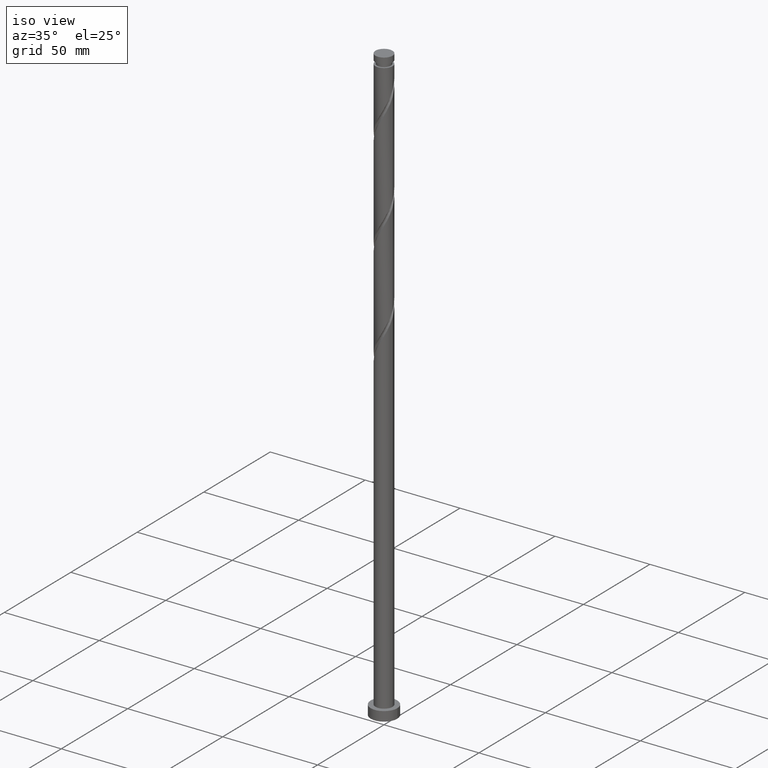
[diagram: clean part render]
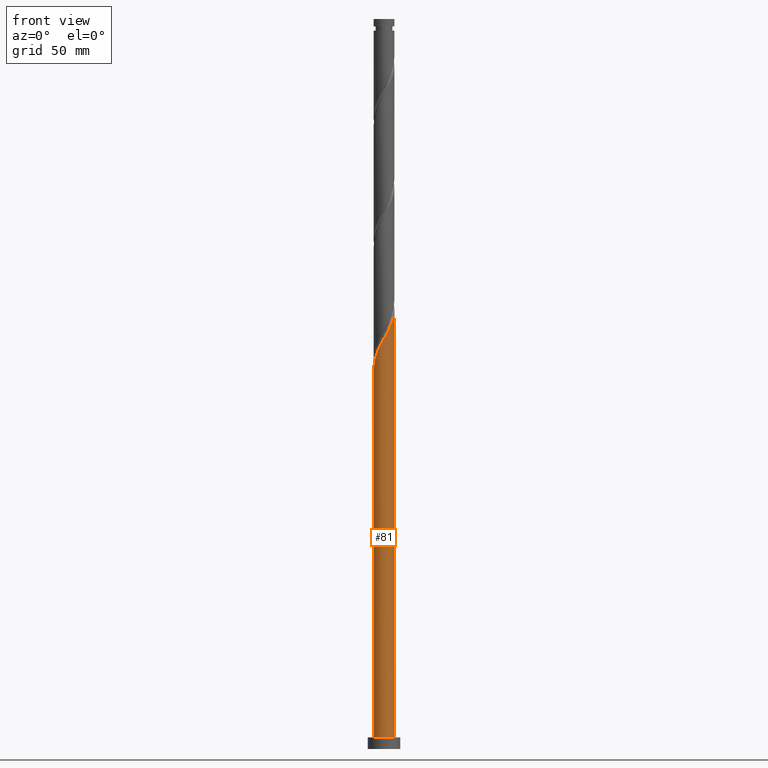
[diagram: tour spotlight — one face highlighted and labeled with its STEP entity id]
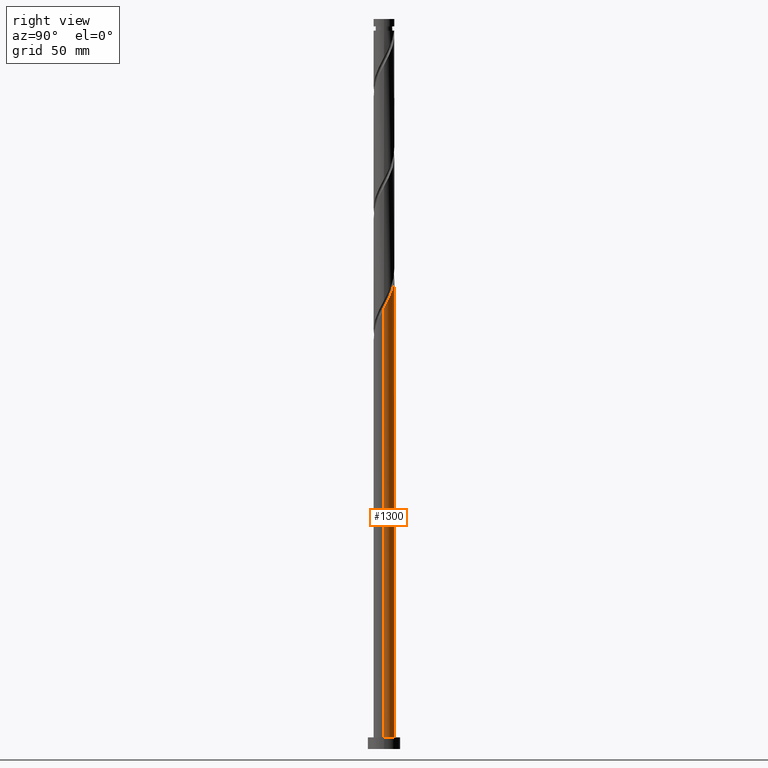
[diagram: tour spotlight — one face highlighted and labeled with its STEP entity id]
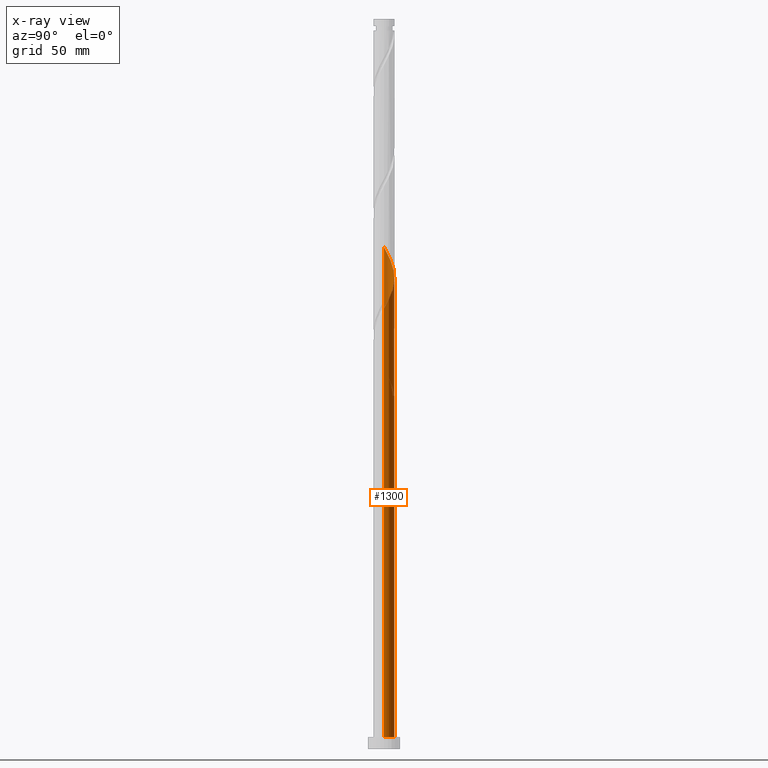
[diagram: x-ray of the same camera — body ghosted, this tour face saturated]
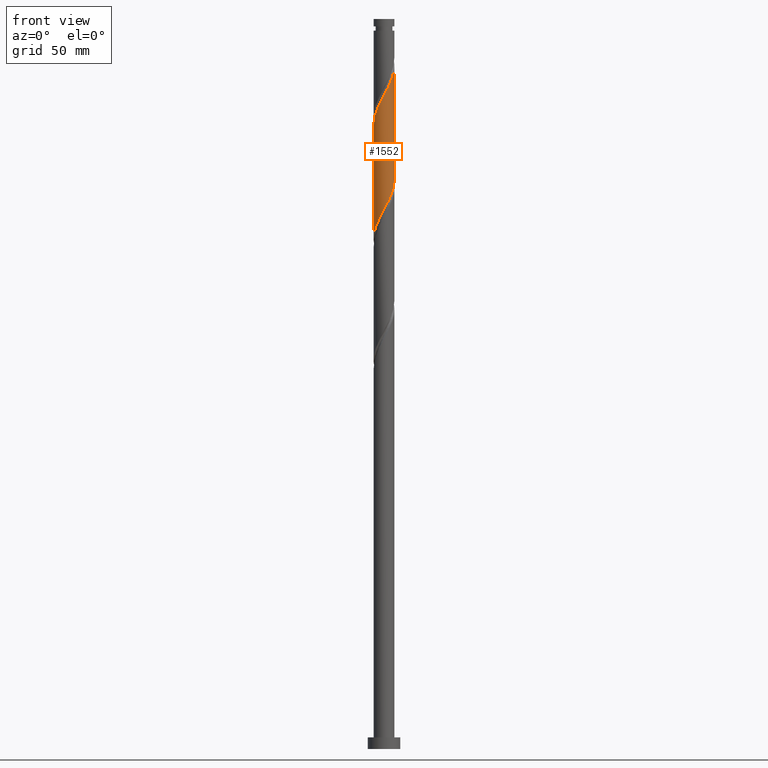
[diagram: tour spotlight — one face highlighted and labeled with its STEP entity id]
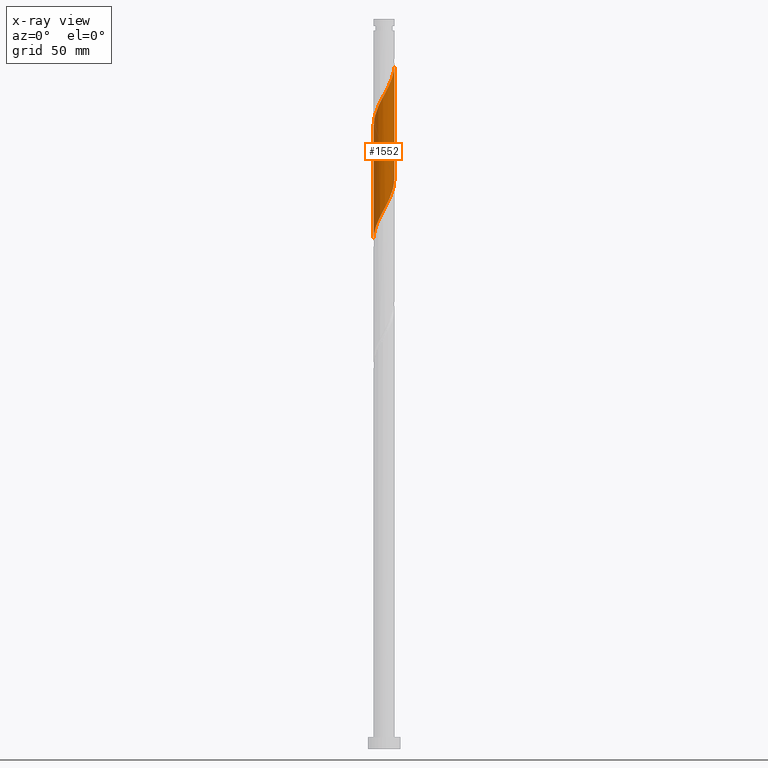
[diagram: x-ray of the same camera — body ghosted, this tour face saturated]
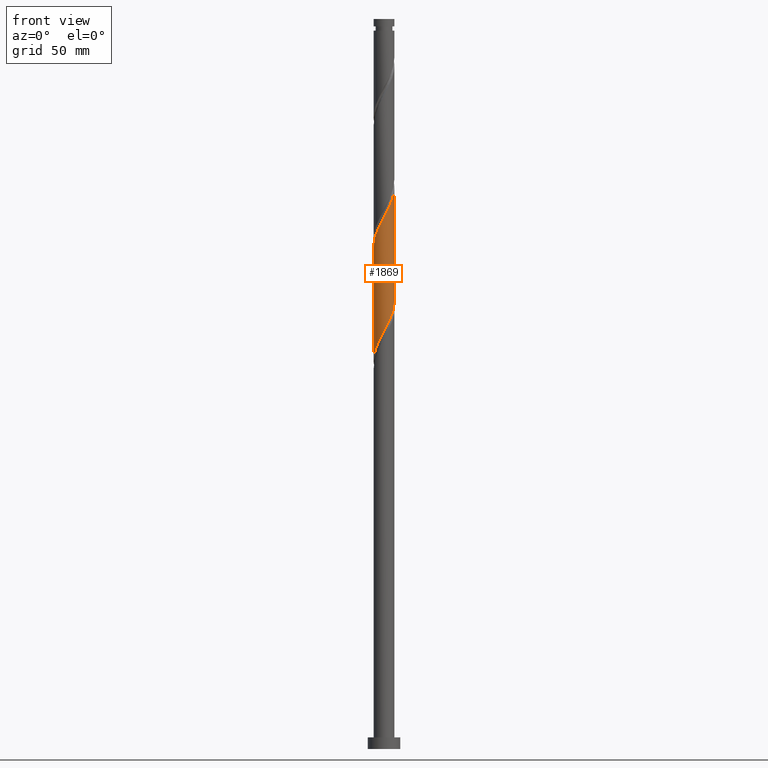
[diagram: tour spotlight — one face highlighted and labeled with its STEP entity id]
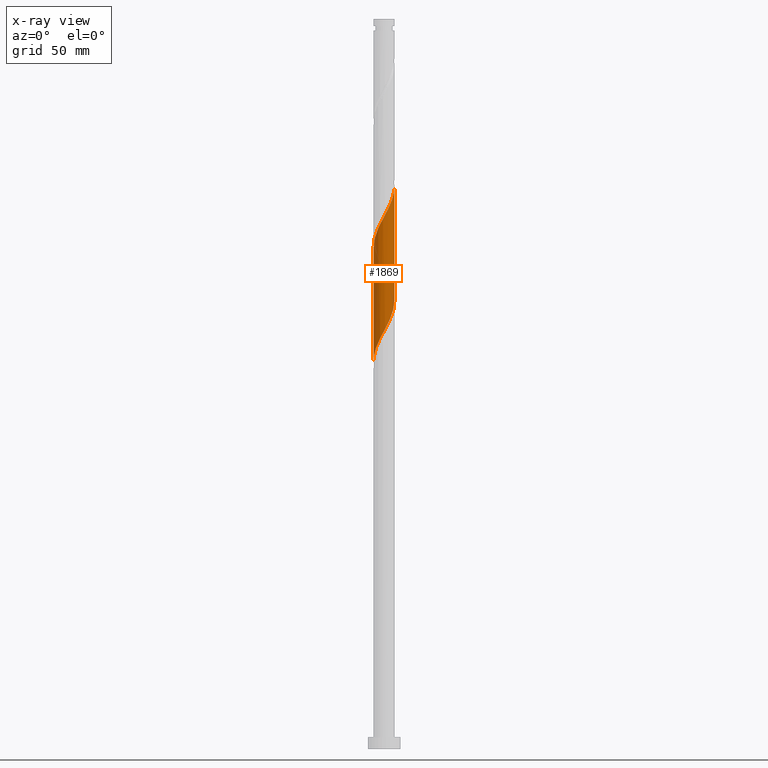
[diagram: x-ray of the same camera — body ghosted, this tour face saturated]
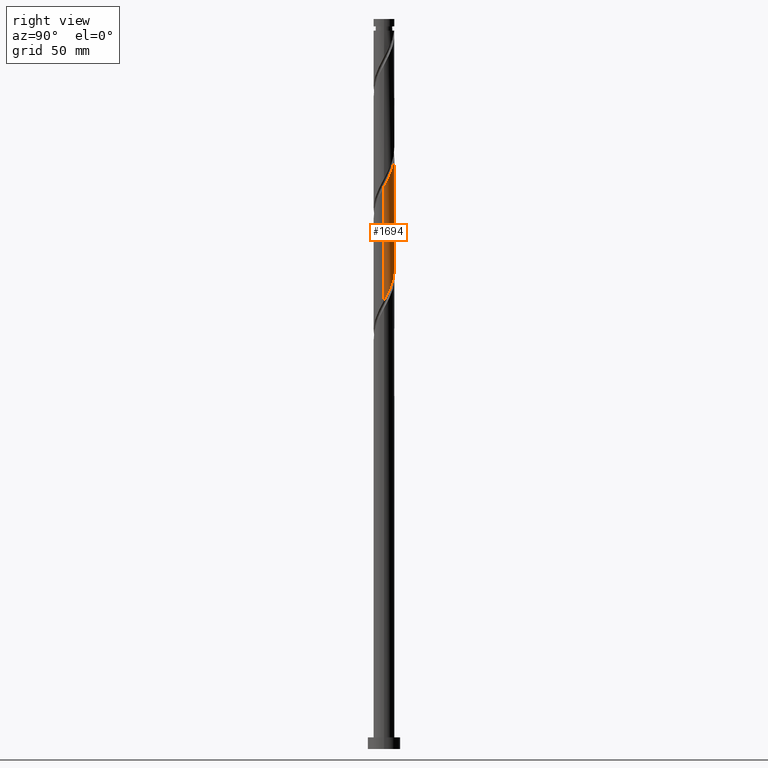
[diagram: tour spotlight — one face highlighted and labeled with its STEP entity id]
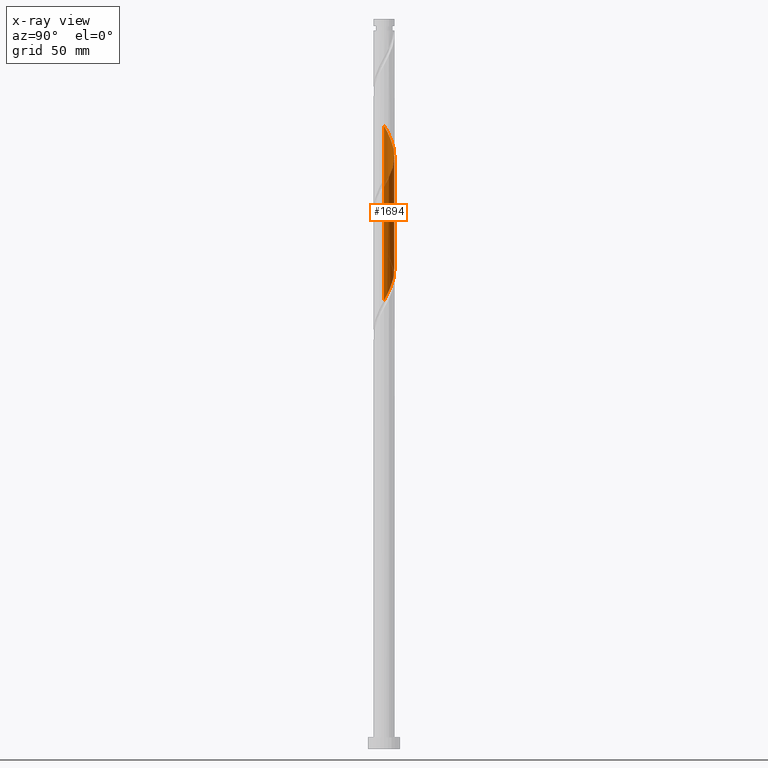
[diagram: x-ray of the same camera — body ghosted, this tour face saturated]
A machine part: a face-by-face anatomy tour. The part has 21 B-rep faces; the first image is the clean iso view, then the 5 largest visible faces are spotlighted one at a time (largest first), each with its STEP entity span.

Face 1 — front view, entity #81. In plain terms, the highlighted cylindrical surface (edge-blend (fillet) strip) has radius 4.5 mm, axis along (-0, -0, -1).
Definition (entity closure, byte-faithful):
#35 = CARTESIAN_POINT ( 'NONE',  ( -3.891231568372341965, -2.316332123609151417, 168.4365483705880422 ) ) ;
#54 = CARTESIAN_POINT ( 'NONE',  ( -2.500859658072932312, -3.775285233751816794, 172.1865483705880706 ) ) ;
#81 = ADVANCED_FACE ( 'NONE', ( #1169 ), #1196, .T. ) ;
#88 = EDGE_LOOP ( 'NONE', ( #1513, #684, #1721, #1727 ) ) ;
#92 = CARTESIAN_POINT ( 'NONE',  ( 4.486496802515036464, -0.6151618214612585289, 189.0615483705880990 ) ) ;
#98 = EDGE_CURVE ( 'NONE', #1115, #720, #1259, .T. ) ;
#135 = EDGE_CURVE ( 'NONE', #645, #745, #301, .T. ) ;
#159 = CARTESIAN_POINT ( 'NONE',  ( 0.000000000000000000, 0.000000000000000000, 5.000000000000000000 ) ) ;
#165 = DIRECTION ( 'NONE',  ( 1.000000000000000000, 0.000000000000000000, 0.000000000000000000 ) ) ;
#220 = CARTESIAN_POINT ( 'NONE',  ( 3.449711278888142552, -2.889548769671831607, 184.3740483705881275 ) ) ;
#258 = DIRECTION ( 'NONE',  ( -0.000000000000000000, -0.000000000000000000, -1.000000000000000000 ) ) ;
#301 =( BOUNDED_CURVE ( )  B_SPLINE_CURVE ( 2, ( #750, #470, #1059, #881, #1500, #35, #1035, #1375, #1230, #54, #1678, #482, #355, #796, #1068, #1655, #330, #1216, #1078, #936, #1518, #513, #220, #1371, #810, #360, #1401, #92, #1672, #947, #1266 ),
 .UNSPECIFIED., .F., .T. ) 
 B_SPLINE_CURVE_WITH_KNOTS ( ( 3, 2, 2, 2, 2, 2, 2, 2, 2, 2, 2, 2, 2, 2, 2, 3 ),
 ( 0.05453034012992237500, 0.06250000000000000000, 0.07142857142857139685, 0.08035714285714290472, 0.08928571428571430157, 0.09821428571428569843, 0.1071428571428570953, 0.1160714285714286031, 0.1250000000000000000, 0.1339285714285713969, 0.1428571428571429047, 0.1517857142857143016, 0.1607142857142856984, 0.1696428571428570953, 0.1785714285714286031, 0.1795303401299221113 ),
 .UNSPECIFIED. ) 
 CURVE ( )  GEOMETRIC_REPRESENTATION_ITEM ( )  RATIONAL_B_SPLINE_CURVE ( ( 0.9079949616362061882, 0.9039886423360699030, 0.9090909090909363721, 0.9033747362666113556, 0.9090909090909363721, 0.9033747362666113556, 0.9090909090909363721, 0.9033747362666113556, 0.9090909090909363721, 0.9033747362666113556, 0.9090909090909363721, 0.9033747362666113556, 0.9090909090909363721, 0.9033747362666113556, 0.9090909090909363721, 0.9033747362666113556, 0.9090909090909363721, 0.9033747362666113556, 0.9090909090909363721, 0.9033747362666113556, 0.9090909090909363721, 0.9033747362666113556, 0.9090909090909363721, 0.9033747362666113556, 0.9090909090909363721, 0.9033747362666113556, 0.9090909090909363721, 0.9033747362666113556, 0.9090909090909363721, 0.9084770030214781578, 0.9079949616362065212 ) ) 
 REPRESENTATION_ITEM ( '' )  );
#319 = CARTESIAN_POINT ( 'NONE',  ( 0.000000000000000000, 0.000000000000000000, 315.0000000000000000 ) ) ;
#330 = CARTESIAN_POINT ( 'NONE',  ( 0.8954886933959618212, -4.410000000000005471, 178.7490483705880706 ) ) ;
#355 = CARTESIAN_POINT ( 'NONE',  ( -1.106619855200057678, -4.361810690077809305, 174.9990483705880706 ) ) ;
#360 = CARTESIAN_POINT ( 'NONE',  ( 4.237124577640583034, -1.598077888938856272, 187.1865483705880138 ) ) ;
#425 = LINE ( 'NONE', #1021, #1564 ) ;
#443 = DIRECTION ( 'NONE',  ( -0.000000000000000000, -0.000000000000000000, -1.000000000000000000 ) ) ;
#470 = CARTESIAN_POINT ( 'NONE',  ( -4.500000000000002665, -0.4522670168666649837, 164.7878023716456539 ) ) ;
#482 = CARTESIAN_POINT ( 'NONE',  ( -1.598077888938856272, -4.237124577640583034, 174.0615483705880990 ) ) ;
#513 = CARTESIAN_POINT ( 'NONE',  ( 3.124137324024467866, -3.278237881270729570, 183.4365483705880990 ) ) ;
#520 = AXIS2_PLACEMENT_3D ( 'NONE', #319, #443, #915 ) ;
#523 = CARTESIAN_POINT ( 'NONE',  ( 4.500000000000000888, 5.510910596163089556E-16, 5.000000000000000000 ) ) ;
#645 = VERTEX_POINT ( 'NONE', #1673 ) ;
#684 = ORIENTED_EDGE ( 'NONE', *, *, #135, .F. ) ;
#720 = VERTEX_POINT ( 'NONE', #523 ) ;
#745 = VERTEX_POINT ( 'NONE', #1093 ) ;
#750 = CARTESIAN_POINT ( 'NONE',  ( -4.500000000000006217, -1.510488280378442580E-14, 163.9495312926821100 ) ) ;
#796 = CARTESIAN_POINT ( 'NONE',  ( -0.6151618214612581959, -4.486496802515036464, 175.9365483705880990 ) ) ;
#810 = CARTESIAN_POINT ( 'NONE',  ( 4.006204905696200136, -2.049468773505894958, 186.2490483705881275 ) ) ;
#831 = EDGE_CURVE ( 'NONE', #745, #720, #854, .T. ) ;
#854 = LINE ( 'NONE', #1289, #1257 ) ;
#881 = CARTESIAN_POINT ( 'NONE',  ( -4.309102656267771891, -1.392376358355452037, 166.5615483705881275 ) ) ;
#915 = DIRECTION ( 'NONE',  ( -1.000000000000000000, 0.000000000000000000, 0.000000000000000000 ) ) ;
#936 = CARTESIAN_POINT ( 'NONE',  ( 2.316332123609150972, -3.891231568372342853, 181.5615483705880990 ) ) ;
#947 = CARTESIAN_POINT ( 'NONE',  ( 4.500000000000007994, -0.05414803724875363877, 190.0991686044569349 ) ) ;
#1021 = CARTESIAN_POINT ( 'NONE',  ( -4.500000000000000888, 0.000000000000000000, 315.0000000000000000 ) ) ;
#1035 = CARTESIAN_POINT ( 'NONE',  ( -3.584734724821536211, -2.720234723816810529, 169.3740483705880990 ) ) ;
#1059 = CARTESIAN_POINT ( 'NONE',  ( -4.410000000000005471, -0.8954886933959620432, 165.6240483705881275 ) ) ;
#1068 = CARTESIAN_POINT ( 'NONE',  ( -0.1082803965123934481, -4.498697073123638646, 176.8740483705880990 ) ) ;
#1078 = CARTESIAN_POINT ( 'NONE',  ( 1.854354240982302171, -4.100167112320058926, 180.6240483705880990 ) ) ;
#1093 = CARTESIAN_POINT ( 'NONE',  ( 4.500000000000006217, 1.947813444559157076E-15, 190.1995312926820532 ) ) ;
#1115 = VERTEX_POINT ( 'NONE', #1515 ) ;
#1169 = FACE_OUTER_BOUND ( 'NONE', #88, .T. ) ;
#1196 = CYLINDRICAL_SURFACE ( 'NONE', #520, 4.500000000000000888 ) ;
#1216 = CARTESIAN_POINT ( 'NONE',  ( 1.392376358355451815, -4.309102656267771891, 179.6865483705880706 ) ) ;
#1230 = CARTESIAN_POINT ( 'NONE',  ( -2.889548769671831163, -3.449711278888142996, 171.2490483705880990 ) ) ;
#1257 = VECTOR ( 'NONE', #258, 1000.000000000000000 ) ;
#1259 = CIRCLE ( 'NONE', #1384, 4.500000000000000888 ) ;
#1266 = CARTESIAN_POINT ( 'NONE',  ( 4.500000000000006217, 1.947813444559157076E-15, 190.1995312926820532 ) ) ;
#1289 = CARTESIAN_POINT ( 'NONE',  ( 4.500000000000000888, 5.510910596163089556E-16, 315.0000000000000000 ) ) ;
#1371 = CARTESIAN_POINT ( 'NONE',  ( 3.775285233751816794, -2.500859658072932312, 185.3115483705880990 ) ) ;
#1375 = CARTESIAN_POINT ( 'NONE',  ( -3.278237881270729570, -3.124137324024467866, 170.3115483705880990 ) ) ;
#1384 = AXIS2_PLACEMENT_3D ( 'NONE', #159, #1480, #165 ) ;
#1399 = EDGE_CURVE ( 'NONE', #645, #1115, #425, .T. ) ;
#1401 = CARTESIAN_POINT ( 'NONE',  ( 4.361810690077809305, -1.106619855200057900, 188.1240483705880706 ) ) ;
#1480 = DIRECTION ( 'NONE',  ( 0.000000000000000000, 0.000000000000000000, 1.000000000000000000 ) ) ;
#1500 = CARTESIAN_POINT ( 'NONE',  ( -4.100167112320058926, -1.854354240982302615, 167.4990483705880990 ) ) ;
#1513 = ORIENTED_EDGE ( 'NONE', *, *, #831, .F. ) ;
#1515 = CARTESIAN_POINT ( 'NONE',  ( -4.500000000000000888, 0.000000000000000000, 5.000000000000000000 ) ) ;
#1518 = CARTESIAN_POINT ( 'NONE',  ( 2.720234723816809641, -3.584734724821536211, 182.4990483705881275 ) ) ;
#1564 = VECTOR ( 'NONE', #1603, 1000.000000000000000 ) ;
#1603 = DIRECTION ( 'NONE',  ( -0.000000000000000000, -0.000000000000000000, -1.000000000000000000 ) ) ;
#1655 = CARTESIAN_POINT ( 'NONE',  ( 0.3986010284364714940, -4.510897343732238163, 177.8115483705880990 ) ) ;
#1672 = CARTESIAN_POINT ( 'NONE',  ( 4.498697073123638646, -0.1082803965123936979, 189.9990483705880990 ) ) ;
#1673 = CARTESIAN_POINT ( 'NONE',  ( -4.500000000000006217, -1.510488280378442580E-14, 163.9495312926821100 ) ) ;
#1678 = CARTESIAN_POINT ( 'NONE',  ( -2.049468773505894958, -4.006204905696200136, 173.1240483705880990 ) ) ;
#1721 = ORIENTED_EDGE ( 'NONE', *, *, #1399, .T. ) ;
#1727 = ORIENTED_EDGE ( 'NONE', *, *, #98, .T. ) ;

Face 2 — right view, entity #1300. An x-ray twin of the same camera follows (body ghosted, this face saturated) — the face is partly hidden behind the body. In plain terms, the highlighted cylindrical surface (edge-blend (fillet) strip) has radius 4.5 mm, axis along (-0, -0, -1).
Definition (entity closure, byte-faithful):
#14 = CARTESIAN_POINT ( 'NONE',  ( 0.8954886933959631534, 4.410000000000001030, 152.4990483705881275 ) ) ;
#71 = EDGE_CURVE ( 'NONE', #1855, #449, #1441, .T. ) ;
#77 = CARTESIAN_POINT ( 'NONE',  ( 4.500000000000004441, 0.4522670168666496626, 191.0378023716456255 ) ) ;
#82 = CARTESIAN_POINT ( 'NONE',  ( -4.100167112320053597, 1.854354240982300839, 163.7490483705881275 ) ) ;
#87 = CARTESIAN_POINT ( 'NONE',  ( -4.237124577640583034, 1.598077888938856050, 160.9365483705880422 ) ) ;
#105 = EDGE_LOOP ( 'NONE', ( #244, #1151, #1431, #630, #597, #150, #227, #1587 ) ) ;
#150 = ORIENTED_EDGE ( 'NONE', *, *, #1362, .T. ) ;
#182 = AXIS2_PLACEMENT_3D ( 'NONE', #1506, #883, #933 ) ;
#201 = CARTESIAN_POINT ( 'NONE',  ( -4.500000000000007994, 0.05414803724873810953, 163.8491686044569633 ) ) ;
#204 = CARTESIAN_POINT ( 'NONE',  ( -4.500000000000007105, 9.977879599140201970E-15, 216.4495312926820247 ) ) ;
#208 = CARTESIAN_POINT ( 'NONE',  ( 3.278237881270730014, 3.124137324024467866, 196.5615483705880706 ) ) ;
#227 = ORIENTED_EDGE ( 'NONE', *, *, #71, .F. ) ;
#244 = ORIENTED_EDGE ( 'NONE', *, *, #1864, .F. ) ;
#252 = CARTESIAN_POINT ( 'NONE',  ( -2.720234723816810973, 3.584734724821536211, 208.7490483705880706 ) ) ;
#256 = DIRECTION ( 'NONE',  ( -1.000000000000000000, 0.000000000000000000, 0.000000000000000000 ) ) ;
#258 = DIRECTION ( 'NONE',  ( -0.000000000000000000, -0.000000000000000000, -1.000000000000000000 ) ) ;
#269 = EDGE_CURVE ( 'NONE', #960, #645, #1908, .T. ) ;
#300 = CARTESIAN_POINT ( 'NONE',  ( -1.106619855200054792, 4.361810690077805752, 156.2490483705880990 ) ) ;
#310 = CARTESIAN_POINT ( 'NONE',  ( -2.889548769671827610, 3.449711278888139887, 159.9990483705881275 ) ) ;
#332 = VECTOR ( 'NONE', #701, 1000.000000000000000 ) ;
#333 = CARTESIAN_POINT ( 'NONE',  ( 2.889548769671831607, 3.449711278888142552, 197.4990483705880990 ) ) ;
#341 = EDGE_CURVE ( 'NONE', #635, #1855, #1901, .T. ) ;
#346 = CARTESIAN_POINT ( 'NONE',  ( -2.316332123609152305, 3.891231568372341965, 155.3115483705880990 ) ) ;
#349 = DIRECTION ( 'NONE',  ( -1.000000000000000000, 0.000000000000000000, 0.000000000000000000 ) ) ;
#374 = CARTESIAN_POINT ( 'NONE',  ( -4.500000000000007105, 9.977879599140201970E-15, 216.4495312926820247 ) ) ;
#395 = AXIS2_PLACEMENT_3D ( 'NONE', #573, #531, #256 ) ;
#425 = LINE ( 'NONE', #1021, #1564 ) ;
#449 = VERTEX_POINT ( 'NONE', #1234 ) ;
#485 = CARTESIAN_POINT ( 'NONE',  ( -4.498697073123638646, 0.1082803965123930318, 163.7490483705881275 ) ) ;
#489 = CARTESIAN_POINT ( 'NONE',  ( -4.410000000000001030, 0.8954886933959621542, 165.6240483705881275 ) ) ;
#509 = CARTESIAN_POINT ( 'NONE',  ( 0.1082803965123940032, 4.498697073123635981, 203.1240483705880990 ) ) ;
#511 = CYLINDRICAL_SURFACE ( 'NONE', #1101, 4.500000000000000888 ) ;
#523 = CARTESIAN_POINT ( 'NONE',  ( 4.500000000000000888, 5.510910596163089556E-16, 5.000000000000000000 ) ) ;
#527 = CARTESIAN_POINT ( 'NONE',  ( -4.498697073123638646, 0.1082803965123930318, 216.2490483705880990 ) ) ;
#531 = DIRECTION ( 'NONE',  ( 0.000000000000000000, -0.000000000000000000, -1.000000000000000000 ) ) ;
#548 = CARTESIAN_POINT ( 'NONE',  ( -0.3986010284364709944, 4.510897343732238163, 204.0615483705880706 ) ) ;
#573 = CARTESIAN_POINT ( 'NONE',  ( 0.000000000000000000, 0.000000000000000000, 152.4990483705881275 ) ) ;
#585 = CARTESIAN_POINT ( 'NONE',  ( -1.854354240982302837, 4.100167112320058926, 154.3740483705880990 ) ) ;
#597 = ORIENTED_EDGE ( 'NONE', *, *, #269, .F. ) ;
#608 = CIRCLE ( 'NONE', #395, 4.500000000000000888 ) ;
#623 = CARTESIAN_POINT ( 'NONE',  ( 4.500000000000006217, 1.947813444559157076E-15, 190.1995312926820532 ) ) ;
#630 = ORIENTED_EDGE ( 'NONE', *, *, #1399, .F. ) ;
#635 = VERTEX_POINT ( 'NONE', #204 ) ;
#645 = VERTEX_POINT ( 'NONE', #1673 ) ;
#653 = CARTESIAN_POINT ( 'NONE',  ( 1.598077888938856939, 4.237124577640583034, 200.3115483705880706 ) ) ;
#658 = CARTESIAN_POINT ( 'NONE',  ( -4.500000000000001776, 3.589648531927049665E-15, 167.2985654484941733 ) ) ;
#661 = CARTESIAN_POINT ( 'NONE',  ( 3.584734724821536656, 2.720234723816809641, 195.6240483705880990 ) ) ;
#666 = CARTESIAN_POINT ( 'NONE',  ( -3.891231568372338412, 2.316332123609150528, 162.8115483705881275 ) ) ;
#670 = CARTESIAN_POINT ( 'NONE',  ( -4.006204905696200136, 2.049468773505894514, 212.4990483705880706 ) ) ;
#701 = DIRECTION ( 'NONE',  ( -0.000000000000000000, -0.000000000000000000, -1.000000000000000000 ) ) ;
#720 = VERTEX_POINT ( 'NONE', #523 ) ;
#730 = CARTESIAN_POINT ( 'NONE',  ( -2.500859658072928760, 3.775285233751813241, 159.0615483705880990 ) ) ;
#745 = VERTEX_POINT ( 'NONE', #1093 ) ;
#766 = CARTESIAN_POINT ( 'NONE',  ( -3.278237881270724685, 3.124137324024465645, 160.9365483705881559 ) ) ;
#798 = CARTESIAN_POINT ( 'NONE',  ( 2.500859658072932312, 3.775285233751815461, 198.4365483705879853 ) ) ;
#799 = CARTESIAN_POINT ( 'NONE',  ( -3.449711278888142552, 2.889548769671830719, 158.1240483705881275 ) ) ;
#801 = FACE_OUTER_BOUND ( 'NONE', #105, .T. ) ;
#827 = CARTESIAN_POINT ( 'NONE',  ( -3.775285233751816794, 2.500859658072932312, 211.5615483705880422 ) ) ;
#831 = EDGE_CURVE ( 'NONE', #745, #720, #854, .T. ) ;
#854 = LINE ( 'NONE', #1289, #1257 ) ;
#876 = CARTESIAN_POINT ( 'NONE',  ( -0.8954886933959613771, 4.410000000000005471, 152.4990483705881275 ) ) ;
#883 = DIRECTION ( 'NONE',  ( 0.000000000000000000, 0.000000000000000000, 1.000000000000000000 ) ) ;
#893 = CARTESIAN_POINT ( 'NONE',  ( -0.1082803965123921158, 4.498697073123632428, 154.3740483705880990 ) ) ;
#907 = CARTESIAN_POINT ( 'NONE',  ( -2.049468773505891406, 4.006204905696196583, 158.1240483705880990 ) ) ;
#928 = CARTESIAN_POINT ( 'NONE',  ( 2.049468773505894958, 4.006204905696200136, 199.3740483705881275 ) ) ;
#929 = CARTESIAN_POINT ( 'NONE',  ( -2.720234723816810973, 3.584734724821536211, 156.2490483705880990 ) ) ;
#933 = DIRECTION ( 'NONE',  ( 1.000000000000000000, 0.000000000000000000, 0.000000000000000000 ) ) ;
#942 = CARTESIAN_POINT ( 'NONE',  ( -3.775285233751816794, 2.500859658072932312, 159.0615483705880990 ) ) ;
#952 = CARTESIAN_POINT ( 'NONE',  ( -3.124137324024468754, 3.278237881270729570, 157.1865483705880990 ) ) ;
#960 = VERTEX_POINT ( 'NONE', #1639 ) ;
#997 = CARTESIAN_POINT ( 'NONE',  ( -4.361810690077809305, 1.106619855200057678, 214.3740483705880706 ) ) ;
#1021 = CARTESIAN_POINT ( 'NONE',  ( -4.500000000000000888, 0.000000000000000000, 315.0000000000000000 ) ) ;
#1091 = EDGE_CURVE ( 'NONE', #720, #1115, #1884, .T. ) ;
#1093 = CARTESIAN_POINT ( 'NONE',  ( 4.500000000000006217, 1.947813444559157076E-15, 190.1995312926820532 ) ) ;
#1096 = CARTESIAN_POINT ( 'NONE',  ( -4.500000000000001776, 3.589648531927049665E-15, 167.2985654484941733 ) ) ;
#1101 = AXIS2_PLACEMENT_3D ( 'NONE', #1536, #1252, #349 ) ;
#1110 =( BOUNDED_CURVE ( )  B_SPLINE_CURVE ( 2, ( #623, #77, #1658, #1679, #1206, #1397, #661, #208, #333, #798, #928, #653, #1249, #1242, #509, #548, #1582, #1549, #1738, #1129, #252, #1569, #1697, #827, #670, #1854, #997, #1284, #527, #1262, #374 ),
 .UNSPECIFIED., .F., .T. ) 
 B_SPLINE_CURVE_WITH_KNOTS ( ( 3, 2, 2, 2, 2, 2, 2, 2, 2, 2, 2, 2, 2, 2, 2, 3 ),
 ( 0.1795303401299221113, 0.1875000000000000000, 0.1964285714285713969, 0.2053571428571429047, 0.2142857142857143016, 0.2232142857142856984, 0.2321428571428570953, 0.2410714285714286031, 0.2500000000000000000, 0.2589285714285713969, 0.2678571428571429047, 0.2767857142857143016, 0.2857142857142856984, 0.2946428571428570953, 0.3035714285714286031, 0.3045303401299220281 ),
 .UNSPECIFIED. ) 
 CURVE ( )  GEOMETRIC_REPRESENTATION_ITEM ( )  RATIONAL_B_SPLINE_CURVE ( ( 0.9079949616362065212, 0.9039886423360696810, 0.9090909090909363721, 0.9033747362666113556, 0.9090909090909363721, 0.9033747362666113556, 0.9090909090909363721, 0.9033747362666113556, 0.9090909090909363721, 0.9033747362666113556, 0.9090909090909363721, 0.9033747362666113556, 0.9090909090909363721, 0.9033747362666113556, 0.9090909090909363721, 0.9033747362666113556, 0.9090909090909363721, 0.9033747362666113556, 0.9090909090909363721, 0.9033747362666113556, 0.9090909090909363721, 0.9033747362666113556, 0.9090909090909363721, 0.9033747362666113556, 0.9090909090909363721, 0.9033747362666113556, 0.9090909090909363721, 0.9033747362666113556, 0.9090909090909363721, 0.9084770030214781578, 0.9079949616362065212 ) ) 
 REPRESENTATION_ITEM ( '' )  );
#1115 = VERTEX_POINT ( 'NONE', #1515 ) ;
#1129 = CARTESIAN_POINT ( 'NONE',  ( -2.316332123609152305, 3.891231568372341965, 207.8115483705880990 ) ) ;
#1151 = ORIENTED_EDGE ( 'NONE', *, *, #831, .T. ) ;
#1179 = CARTESIAN_POINT ( 'NONE',  ( -1.598077888938853608, 4.237124577640579481, 157.1865483705881559 ) ) ;
#1206 = CARTESIAN_POINT ( 'NONE',  ( 4.100167112320058926, 1.854354240982301949, 193.7490483705880990 ) ) ;
#1219 = CARTESIAN_POINT ( 'NONE',  ( -4.361810690077809305, 1.106619855200057678, 161.8740483705880990 ) ) ;
#1233 = CARTESIAN_POINT ( 'NONE',  ( -4.006204905696200136, 2.049468773505894514, 159.9990483705881275 ) ) ;
#1234 = CARTESIAN_POINT ( 'NONE',  ( 0.8954886933959631534, 4.410000000000001030, 152.4990483705881275 ) ) ;
#1242 = CARTESIAN_POINT ( 'NONE',  ( 0.6151618214612590840, 4.486496802515036464, 202.1865483705880706 ) ) ;
#1249 = CARTESIAN_POINT ( 'NONE',  ( 1.106619855200057900, 4.361810690077809305, 201.2490483705880990 ) ) ;
#1252 = DIRECTION ( 'NONE',  ( -0.000000000000000000, -0.000000000000000000, -1.000000000000000000 ) ) ;
#1257 = VECTOR ( 'NONE', #258, 1000.000000000000000 ) ;
#1262 = CARTESIAN_POINT ( 'NONE',  ( -4.500000000000007994, 0.05414803724875770496, 216.3491686044569633 ) ) ;
#1284 = CARTESIAN_POINT ( 'NONE',  ( -4.486496802515036464, 0.6151618214612580848, 215.3115483705880990 ) ) ;
#1289 = CARTESIAN_POINT ( 'NONE',  ( 4.500000000000000888, 5.510910596163089556E-16, 315.0000000000000000 ) ) ;
#1300 = ADVANCED_FACE ( 'NONE', ( #801 ), #511, .T. ) ;
#1315 = CARTESIAN_POINT ( 'NONE',  ( -1.392376358355452481, 4.309102656267771891, 153.4365483705880990 ) ) ;
#1362 = EDGE_CURVE ( 'NONE', #960, #449, #608, .T. ) ;
#1397 = CARTESIAN_POINT ( 'NONE',  ( 3.891231568372342853, 2.316332123609150972, 194.6865483705880706 ) ) ;
#1399 = EDGE_CURVE ( 'NONE', #645, #1115, #425, .T. ) ;
#1404 = CARTESIAN_POINT ( 'NONE',  ( -4.309102656267769227, 1.392376358355452259, 164.6865483705881275 ) ) ;
#1431 = ORIENTED_EDGE ( 'NONE', *, *, #1091, .T. ) ;
#1441 =( BOUNDED_CURVE ( )  B_SPLINE_CURVE ( 2, ( #658, #1693, #489, #1404, #82, #666, #1609, #766, #310, #730, #907, #1179, #300, #1924, #893, #1489, #14 ),
 .UNSPECIFIED., .F., .T. ) 
 B_SPLINE_CURVE_WITH_KNOTS ( ( 3, 2, 2, 2, 2, 2, 2, 2, 3 ),
 ( 0.9295303401299221946, 0.9375000000000000000, 0.9464285714285713969, 0.9553571428571429047, 0.9642857142857143016, 0.9732142857142856984, 0.9821428571428570953, 0.9910714285714286031, 1.000000000000000000 ),
 .UNSPECIFIED. ) 
 CURVE ( )  GEOMETRIC_REPRESENTATION_ITEM ( )  RATIONAL_B_SPLINE_CURVE ( ( 0.9079949616362010811, 0.9039886423360644629, 0.9090909090909310430, 0.9033747362666060265, 0.9090909090909310430, 0.9033747362666060265, 0.9090909090909310430, 0.9033747362666060265, 0.9090909090909310430, 0.9033747362666060265, 0.9090909090909310430, 0.9033747362666060265, 0.9090909090909310430, 0.9033747362666060265, 0.9090909090909310430, 0.9033747362666060265, 0.9090909090909310430 ) ) 
 REPRESENTATION_ITEM ( '' )  );
#1489 = CARTESIAN_POINT ( 'NONE',  ( 0.3986010284364721601, 4.510897343732234610, 153.4365483705881275 ) ) ;
#1506 = CARTESIAN_POINT ( 'NONE',  ( 0.000000000000000000, 0.000000000000000000, 5.000000000000000000 ) ) ;
#1515 = CARTESIAN_POINT ( 'NONE',  ( -4.500000000000000888, 0.000000000000000000, 5.000000000000000000 ) ) ;
#1534 = CARTESIAN_POINT ( 'NONE',  ( -4.500000000000006217, -1.510488280378442580E-14, 163.9495312926821100 ) ) ;
#1536 = CARTESIAN_POINT ( 'NONE',  ( 0.000000000000000000, 0.000000000000000000, 315.0000000000000000 ) ) ;
#1549 = CARTESIAN_POINT ( 'NONE',  ( -1.392376358355452481, 4.309102656267771891, 205.9365483705880422 ) ) ;
#1564 = VECTOR ( 'NONE', #1603, 1000.000000000000000 ) ;
#1569 = CARTESIAN_POINT ( 'NONE',  ( -3.124137324024468754, 3.278237881270729570, 209.6865483705880422 ) ) ;
#1582 = CARTESIAN_POINT ( 'NONE',  ( -0.8954886933959613771, 4.410000000000005471, 204.9990483705880706 ) ) ;
#1587 = ORIENTED_EDGE ( 'NONE', *, *, #341, .F. ) ;
#1603 = DIRECTION ( 'NONE',  ( -0.000000000000000000, -0.000000000000000000, -1.000000000000000000 ) ) ;
#1609 = CARTESIAN_POINT ( 'NONE',  ( -3.584734724821531771, 2.720234723816808309, 161.8740483705880422 ) ) ;
#1639 = CARTESIAN_POINT ( 'NONE',  ( -0.8954886933959612660, 4.410000000000005471, 152.4990483705881275 ) ) ;
#1658 = CARTESIAN_POINT ( 'NONE',  ( 4.410000000000005471, 0.8954886933959614881, 191.8740483705880990 ) ) ;
#1673 = CARTESIAN_POINT ( 'NONE',  ( -4.500000000000006217, -1.510488280378442580E-14, 163.9495312926821100 ) ) ;
#1679 = CARTESIAN_POINT ( 'NONE',  ( 4.309102656267771891, 1.392376358355451815, 192.8115483705880706 ) ) ;
#1693 = CARTESIAN_POINT ( 'NONE',  ( -4.500000000000000888, 0.4522670168666555468, 166.4602943695305726 ) ) ;
#1697 = CARTESIAN_POINT ( 'NONE',  ( -3.449711278888142552, 2.889548769671830719, 210.6240483705880990 ) ) ;
#1705 = CARTESIAN_POINT ( 'NONE',  ( -4.500000000000000888, 0.000000000000000000, 315.0000000000000000 ) ) ;
#1738 = CARTESIAN_POINT ( 'NONE',  ( -1.854354240982302837, 4.100167112320058926, 206.8740483705880990 ) ) ;
#1807 = CARTESIAN_POINT ( 'NONE',  ( -4.486496802515036464, 0.6151618214612580848, 162.8115483705880990 ) ) ;
#1854 = CARTESIAN_POINT ( 'NONE',  ( -4.237124577640583034, 1.598077888938856050, 213.4365483705880990 ) ) ;
#1855 = VERTEX_POINT ( 'NONE', #1096 ) ;
#1864 = EDGE_CURVE ( 'NONE', #745, #635, #1110, .T. ) ;
#1884 = CIRCLE ( 'NONE', #182, 4.500000000000000888 ) ;
#1901 = LINE ( 'NONE', #1705, #332 ) ;
#1908 =( BOUNDED_CURVE ( )  B_SPLINE_CURVE ( 2, ( #876, #1315, #585, #346, #929, #952, #799, #942, #1233, #87, #1219, #1807, #485, #201, #1534 ),
 .UNSPECIFIED., .F., .T. ) 
 B_SPLINE_CURVE_WITH_KNOTS ( ( 3, 2, 2, 2, 2, 2, 2, 3 ),
 ( 0.000000000000000000, 0.008928571428571396851, 0.01785714285714290472, 0.02678571428571430157, 0.03571428571428569843, 0.04464285714285709528, 0.05357142857142860315, 0.05453034012992237500 ),
 .UNSPECIFIED. ) 
 CURVE ( )  GEOMETRIC_REPRESENTATION_ITEM ( )  RATIONAL_B_SPLINE_CURVE ( ( 0.9090909090909363721, 0.9033747362666113556, 0.9090909090909363721, 0.9033747362666113556, 0.9090909090909363721, 0.9033747362666113556, 0.9090909090909363721, 0.9033747362666113556, 0.9090909090909363721, 0.9033747362666113556, 0.9090909090909363721, 0.9033747362666113556, 0.9090909090909363721, 0.9084770030214779357, 0.9079949616362061882 ) ) 
 REPRESENTATION_ITEM ( '' )  );
#1924 = CARTESIAN_POINT ( 'NONE',  ( -0.6151618214612567526, 4.486496802515031135, 155.3115483705881275 ) ) ;

Face 3 — front view, entity #1552. An x-ray twin of the same camera follows (body ghosted, this face saturated) — the face is partly hidden behind the body. In plain terms, the highlighted cylindrical surface (edge-blend (fillet) strip) has radius 4.5 mm, axis along (-0, -0, -1).
Definition (entity closure, byte-faithful):
#41 = DIRECTION ( 'NONE',  ( -0.000000000000000000, -0.000000000000000000, -1.000000000000000000 ) ) ;
#47 = CARTESIAN_POINT ( 'NONE',  ( 0.8954886933959618212, -4.410000000000005471, 283.7490483705881843 ) ) ;
#56 = CARTESIAN_POINT ( 'NONE',  ( 3.775285233751816794, -2.500859658072932312, 290.3115483705880138 ) ) ;
#121 = CARTESIAN_POINT ( 'NONE',  ( 3.891231568372338412, -2.316332123609150528, 241.5615483705880990 ) ) ;
#184 = CARTESIAN_POINT ( 'NONE',  ( 4.361810690077809305, -1.106619855200057900, 293.1240483705881275 ) ) ;
#194 = VERTEX_POINT ( 'NONE', #719 ) ;
#248 = VERTEX_POINT ( 'NONE', #993 ) ;
#274 = DIRECTION ( 'NONE',  ( -1.000000000000000000, 0.000000000000000000, 0.000000000000000000 ) ) ;
#311 = CARTESIAN_POINT ( 'NONE',  ( -4.500000000000006217, 4.388177415328674869E-15, 268.9495312926820247 ) ) ;
#323 =( BOUNDED_CURVE ( )  B_SPLINE_CURVE ( 2, ( #311, #768, #1647, #357, #777, #1218, #1836, #1806, #1668, #1502, #959, #1365, #1512, #345, #1542, #941, #47, #1354, #519, #807, #1232, #788, #634, #56, #1824, #365, #184, #951, #493, #1070, #1816 ),
 .UNSPECIFIED., .F., .T. ) 
 B_SPLINE_CURVE_WITH_KNOTS ( ( 3, 2, 2, 2, 2, 2, 2, 2, 2, 2, 2, 2, 2, 2, 2, 3 ),
 ( 0.5545303401299220836, 0.5625000000000000000, 0.5714285714285713969, 0.5803571428571427937, 0.5892857142857143016, 0.5982142857142856984, 0.6071428571428572063, 0.6160714285714286031, 0.6250000000000000000, 0.6339285714285713969, 0.6428571428571427937, 0.6517857142857143016, 0.6607142857142856984, 0.6696428571428572063, 0.6785714285714286031, 0.6795303401299213064 ),
 .UNSPECIFIED. ) 
 CURVE ( )  GEOMETRIC_REPRESENTATION_ITEM ( )  RATIONAL_B_SPLINE_CURVE ( ( 0.9079949616362065212, 0.9039886423360696810, 0.9090909090909363721, 0.9033747362666113556, 0.9090909090909363721, 0.9033747362666113556, 0.9090909090909363721, 0.9033747362666113556, 0.9090909090909363721, 0.9033747362666113556, 0.9090909090909363721, 0.9033747362666113556, 0.9090909090909363721, 0.9033747362666113556, 0.9090909090909363721, 0.9033747362666113556, 0.9090909090909363721, 0.9033747362666113556, 0.9090909090909363721, 0.9033747362666113556, 0.9090909090909363721, 0.9033747362666113556, 0.9090909090909363721, 0.9033747362666113556, 0.9090909090909363721, 0.9033747362666113556, 0.9090909090909363721, 0.9033747362666113556, 0.9090909090909363721, 0.9084770030214786019, 0.9079949616362072984 ) ) 
 REPRESENTATION_ITEM ( '' )  );
#329 = AXIS2_PLACEMENT_3D ( 'NONE', #874, #1796, #274 ) ;
#334 = VERTEX_POINT ( 'NONE', #1455 ) ;
#345 = CARTESIAN_POINT ( 'NONE',  ( -0.6151618214612581959, -4.486496802515036464, 280.9365483705880138 ) ) ;
#347 = EDGE_LOOP ( 'NONE', ( #1343, #1817, #1503, #1624 ) ) ;
#357 = CARTESIAN_POINT ( 'NONE',  ( -4.309102656267771891, -1.392376358355452037, 271.5615483705880706 ) ) ;
#365 = CARTESIAN_POINT ( 'NONE',  ( 4.237124577640583034, -1.598077888938856272, 292.1865483705880138 ) ) ;
#397 = CARTESIAN_POINT ( 'NONE',  ( -3.449711278888139443, -2.889548769671827166, 225.6240483705881559 ) ) ;
#407 = CARTESIAN_POINT ( 'NONE',  ( 4.500000000000001776, -4.029958850812072272E-15, 246.0485654484941733 ) ) ;
#418 = CARTESIAN_POINT ( 'NONE',  ( 0.6151618214612560864, -4.486496802515029358, 234.0615483705881559 ) ) ;
#427 = CARTESIAN_POINT ( 'NONE',  ( -2.316332123609150528, -3.891231568372338412, 228.4365483705881843 ) ) ;
#446 = CARTESIAN_POINT ( 'NONE',  ( 4.500000000000000888, 5.510910596163089556E-16, 315.0000000000000000 ) ) ;
#464 = CARTESIAN_POINT ( 'NONE',  ( -4.500000000000002665, -8.962926999676480676E-15, 219.7985654484942586 ) ) ;
#490 = VERTEX_POINT ( 'NONE', #1239 ) ;
#493 = CARTESIAN_POINT ( 'NONE',  ( 4.498697073123638646, -0.1082803965123936979, 294.9990483705880138 ) ) ;
#519 = CARTESIAN_POINT ( 'NONE',  ( 1.854354240982302171, -4.100167112320058926, 285.6240483705881843 ) ) ;
#542 = CARTESIAN_POINT ( 'NONE',  ( 0.1082803965123917272, -4.498697073123632428, 233.1240483705881275 ) ) ;
#562 = CARTESIAN_POINT ( 'NONE',  ( 1.598077888938853164, -4.237124577640579481, 235.9365483705881275 ) ) ;
#584 = CARTESIAN_POINT ( 'NONE',  ( -4.498697073123632428, -0.1082803965123919215, 219.9990483705881843 ) ) ;
#590 = CYLINDRICAL_SURFACE ( 'NONE', #329, 4.500000000000000888 ) ;
#634 = CARTESIAN_POINT ( 'NONE',  ( 3.449711278888142552, -2.889548769671831607, 289.3740483705880706 ) ) ;
#707 = CARTESIAN_POINT ( 'NONE',  ( 2.889548769671827166, -3.449711278888139887, 238.7490483705881559 ) ) ;
#719 = CARTESIAN_POINT ( 'NONE',  ( 4.500000000000001776, -4.029958850812072272E-15, 246.0485654484941733 ) ) ;
#744 = CARTESIAN_POINT ( 'NONE',  ( -4.361810690077805752, -1.106619855200054792, 221.8740483705881275 ) ) ;
#757 = FACE_OUTER_BOUND ( 'NONE', #347, .T. ) ;
#768 = CARTESIAN_POINT ( 'NONE',  ( -4.500000000000004441, -0.4522670168666487189, 269.7878023716456255 ) ) ;
#777 = CARTESIAN_POINT ( 'NONE',  ( -4.100167112320058926, -1.854354240982302615, 272.4990483705880706 ) ) ;
#788 = CARTESIAN_POINT ( 'NONE',  ( 3.124137324024467866, -3.278237881270729570, 288.4365483705880138 ) ) ;
#807 = CARTESIAN_POINT ( 'NONE',  ( 2.316332123609150972, -3.891231568372342853, 286.5615483705880138 ) ) ;
#830 = CARTESIAN_POINT ( 'NONE',  ( 4.410000000000001030, -0.8954886933959627093, 244.3740483705881559 ) ) ;
#874 = CARTESIAN_POINT ( 'NONE',  ( 0.000000000000000000, 0.000000000000000000, 315.0000000000000000 ) ) ;
#895 = EDGE_CURVE ( 'NONE', #194, #334, #1636, .T. ) ;
#910 = CARTESIAN_POINT ( 'NONE',  ( -4.500000000000002665, -0.05414803724875978663, 219.8989281367193485 ) ) ;
#941 = CARTESIAN_POINT ( 'NONE',  ( 0.3986010284364714940, -4.510897343732238163, 282.8115483705880138 ) ) ;
#945 = CARTESIAN_POINT ( 'NONE',  ( -4.500000000000000888, 0.000000000000000000, 315.0000000000000000 ) ) ;
#951 = CARTESIAN_POINT ( 'NONE',  ( 4.486496802515036464, -0.6151618214612585289, 294.0615483705880138 ) ) ;
#959 = CARTESIAN_POINT ( 'NONE',  ( -2.049468773505894958, -4.006204905696200136, 278.1240483705880706 ) ) ;
#980 = CARTESIAN_POINT ( 'NONE',  ( 3.584734724821531771, -2.720234723816808753, 240.6240483705881275 ) ) ;
#992 = CARTESIAN_POINT ( 'NONE',  ( -3.775285233751813241, -2.500859658072928315, 224.6865483705880990 ) ) ;
#993 = CARTESIAN_POINT ( 'NONE',  ( 4.500000000000007105, 1.276153636090482243E-15, 295.1995312926820247 ) ) ;
#1001 = CARTESIAN_POINT ( 'NONE',  ( 4.500000000000003553, -0.4522670168666437784, 245.2102943695305726 ) ) ;
#1027 = EDGE_CURVE ( 'NONE', #248, #194, #1171, .T. ) ;
#1037 = CARTESIAN_POINT ( 'NONE',  ( -4.006204905696196583, -2.049468773505890962, 223.7490483705882127 ) ) ;
#1045 = CARTESIAN_POINT ( 'NONE',  ( -4.486496802515031135, -0.6151618214612561975, 220.9365483705881559 ) ) ;
#1070 = CARTESIAN_POINT ( 'NONE',  ( 4.500000000000007105, -0.05414803724879913016, 295.0991686044569065 ) ) ;
#1123 = CARTESIAN_POINT ( 'NONE',  ( -2.720234723816808753, -3.584734724821531771, 227.4990483705882127 ) ) ;
#1171 = LINE ( 'NONE', #446, #1659 ) ;
#1209 = EDGE_CURVE ( 'NONE', #490, #334, #1369, .T. ) ;
#1218 = CARTESIAN_POINT ( 'NONE',  ( -3.891231568372341965, -2.316332123609151417, 273.4365483705880706 ) ) ;
#1232 = CARTESIAN_POINT ( 'NONE',  ( 2.720234723816809641, -3.584734724821536211, 287.4990483705880138 ) ) ;
#1239 = CARTESIAN_POINT ( 'NONE',  ( -4.500000000000006217, 4.388177415328674869E-15, 268.9495312926820247 ) ) ;
#1298 = CARTESIAN_POINT ( 'NONE',  ( 2.500859658072928315, -3.775285233751813685, 237.8115483705880422 ) ) ;
#1308 = CARTESIAN_POINT ( 'NONE',  ( -0.8954886933959623763, -4.410000000000001030, 231.2490483705881275 ) ) ;
#1314 = CARTESIAN_POINT ( 'NONE',  ( 4.309102656267769227, -1.392376358355452703, 243.4365483705881275 ) ) ;
#1343 = ORIENTED_EDGE ( 'NONE', *, *, #1027, .F. ) ;
#1354 = CARTESIAN_POINT ( 'NONE',  ( 1.392376358355451815, -4.309102656267771891, 284.6865483705880706 ) ) ;
#1365 = CARTESIAN_POINT ( 'NONE',  ( -1.598077888938856272, -4.237124577640583034, 279.0615483705881275 ) ) ;
#1369 = LINE ( 'NONE', #945, #1690 ) ;
#1420 = CARTESIAN_POINT ( 'NONE',  ( 2.049468773505890518, -4.006204905696196583, 236.8740483705881559 ) ) ;
#1455 = CARTESIAN_POINT ( 'NONE',  ( -4.500000000000002665, -8.962926999676480676E-15, 219.7985654484942586 ) ) ;
#1459 = CARTESIAN_POINT ( 'NONE',  ( 4.100167112320053597, -1.854354240982301727, 242.4990483705881275 ) ) ;
#1502 = CARTESIAN_POINT ( 'NONE',  ( -2.500859658072932312, -3.775285233751816794, 277.1865483705880706 ) ) ;
#1503 = ORIENTED_EDGE ( 'NONE', *, *, #1209, .T. ) ;
#1512 = CARTESIAN_POINT ( 'NONE',  ( -1.106619855200057678, -4.361810690077809305, 279.9990483705880706 ) ) ;
#1542 = CARTESIAN_POINT ( 'NONE',  ( -0.1082803965123934481, -4.498697073123638646, 281.8740483705880706 ) ) ;
#1552 = ADVANCED_FACE ( 'NONE', ( #757 ), #590, .T. ) ;
#1593 = CARTESIAN_POINT ( 'NONE',  ( -0.3986010284364727707, -4.510897343732234610, 232.1865483705880990 ) ) ;
#1622 = CARTESIAN_POINT ( 'NONE',  ( -4.237124577640579481, -1.598077888938853164, 222.8115483705881275 ) ) ;
#1624 = ORIENTED_EDGE ( 'NONE', *, *, #895, .F. ) ;
#1636 =( BOUNDED_CURVE ( )  B_SPLINE_CURVE ( 2, ( #407, #1001, #830, #1314, #1459, #121, #980, #1893, #707, #1298, #1420, #562, #1742, #418, #542, #1593, #1308, #1750, #1903, #427, #1123, #1718, #397, #992, #1037, #1622, #744, #1045, #584, #910, #464 ),
 .UNSPECIFIED., .F., .T. ) 
 B_SPLINE_CURVE_WITH_KNOTS ( ( 3, 2, 2, 2, 2, 2, 2, 2, 2, 2, 2, 2, 2, 2, 2, 3 ),
 ( 0.5545303401299219725, 0.5625000000000000000, 0.5714285714285713969, 0.5803571428571429047, 0.5892857142857143016, 0.5982142857142856984, 0.6071428571428570953, 0.6160714285714286031, 0.6250000000000000000, 0.6339285714285713969, 0.6428571428571429047, 0.6517857142857143016, 0.6607142857142856984, 0.6696428571428570953, 0.6785714285714286031, 0.6795303401299219725 ),
 .UNSPECIFIED. ) 
 CURVE ( )  GEOMETRIC_REPRESENTATION_ITEM ( )  RATIONAL_B_SPLINE_CURVE ( ( 0.9079949616362011922, 0.9039886423360642409, 0.9090909090909310430, 0.9033747362666060265, 0.9090909090909310430, 0.9033747362666060265, 0.9090909090909310430, 0.9033747362666060265, 0.9090909090909310430, 0.9033747362666060265, 0.9090909090909310430, 0.9033747362666060265, 0.9090909090909310430, 0.9033747362666060265, 0.9090909090909310430, 0.9033747362666060265, 0.9090909090909310430, 0.9033747362666060265, 0.9090909090909310430, 0.9033747362666060265, 0.9090909090909310430, 0.9033747362666060265, 0.9090909090909310430, 0.9033747362666060265, 0.9090909090909310430, 0.9033747362666060265, 0.9090909090909310430, 0.9033747362666060265, 0.9090909090909310430, 0.9084770030214728287, 0.9079949616362011922 ) ) 
 REPRESENTATION_ITEM ( '' )  );
#1647 = CARTESIAN_POINT ( 'NONE',  ( -4.410000000000005471, -0.8954886933959620432, 270.6240483705881275 ) ) ;
#1659 = VECTOR ( 'NONE', #1771, 1000.000000000000000 ) ;
#1668 = CARTESIAN_POINT ( 'NONE',  ( -2.889548769671831163, -3.449711278888142996, 276.2490483705881275 ) ) ;
#1690 = VECTOR ( 'NONE', #41, 1000.000000000000000 ) ;
#1718 = CARTESIAN_POINT ( 'NONE',  ( -3.124137324024466533, -3.278237881270724685, 226.5615483705881275 ) ) ;
#1742 = CARTESIAN_POINT ( 'NONE',  ( 1.106619855200054570, -4.361810690077805752, 234.9990483705880990 ) ) ;
#1750 = CARTESIAN_POINT ( 'NONE',  ( -1.392376358355452481, -4.309102656267769227, 230.3115483705881559 ) ) ;
#1759 = EDGE_CURVE ( 'NONE', #490, #248, #323, .T. ) ;
#1771 = DIRECTION ( 'NONE',  ( -0.000000000000000000, -0.000000000000000000, -1.000000000000000000 ) ) ;
#1796 = DIRECTION ( 'NONE',  ( -0.000000000000000000, -0.000000000000000000, -1.000000000000000000 ) ) ;
#1806 = CARTESIAN_POINT ( 'NONE',  ( -3.278237881270729570, -3.124137324024467866, 275.3115483705881275 ) ) ;
#1816 = CARTESIAN_POINT ( 'NONE',  ( 4.500000000000007105, 1.276153636090482243E-15, 295.1995312926820247 ) ) ;
#1817 = ORIENTED_EDGE ( 'NONE', *, *, #1759, .F. ) ;
#1824 = CARTESIAN_POINT ( 'NONE',  ( 4.006204905696200136, -2.049468773505894958, 291.2490483705880706 ) ) ;
#1836 = CARTESIAN_POINT ( 'NONE',  ( -3.584734724821536211, -2.720234723816810529, 274.3740483705880138 ) ) ;
#1893 = CARTESIAN_POINT ( 'NONE',  ( 3.278237881270724685, -3.124137324024466533, 239.6865483705881559 ) ) ;
#1903 = CARTESIAN_POINT ( 'NONE',  ( -1.854354240982301505, -4.100167112320053597, 229.3740483705880990 ) ) ;

Face 4 — front view, entity #1869. An x-ray twin of the same camera follows (body ghosted, this face saturated) — the face is partly hidden behind the body. In plain terms, the highlighted cylindrical surface (edge-blend (fillet) strip) has radius 4.5 mm, axis along (-0, -0, -1).
Definition (entity closure, byte-faithful):
#9 = CARTESIAN_POINT ( 'NONE',  ( 0.3986010284364714940, -4.510897343732238163, 230.3115483705880990 ) ) ;
#23 = CARTESIAN_POINT ( 'NONE',  ( -4.498697073123632428, -0.1082803965123919215, 167.4990483705881275 ) ) ;
#43 = CARTESIAN_POINT ( 'NONE',  ( -3.449711278888139443, -2.889548769671827166, 173.1240483705881275 ) ) ;
#49 = EDGE_CURVE ( 'NONE', #281, #1855, #1377, .T. ) ;
#74 = CARTESIAN_POINT ( 'NONE',  ( -4.500000000000001776, 3.589648531927049665E-15, 167.2985654484941733 ) ) ;
#109 = DIRECTION ( 'NONE',  ( -1.000000000000000000, 0.000000000000000000, 0.000000000000000000 ) ) ;
#130 = CARTESIAN_POINT ( 'NONE',  ( -1.854354240982301505, -4.100167112320053597, 176.8740483705881275 ) ) ;
#133 = DIRECTION ( 'NONE',  ( -0.000000000000000000, -0.000000000000000000, -1.000000000000000000 ) ) ;
#161 = CARTESIAN_POINT ( 'NONE',  ( 4.237124577640583034, -1.598077888938856272, 239.6865483705880138 ) ) ;
#168 = CARTESIAN_POINT ( 'NONE',  ( 4.498697073123638646, -0.1082803965123936979, 242.4990483705880422 ) ) ;
#177 = CARTESIAN_POINT ( 'NONE',  ( -2.889548769671831163, -3.449711278888142996, 223.7490483705881275 ) ) ;
#204 = CARTESIAN_POINT ( 'NONE',  ( -4.500000000000007105, 9.977879599140201970E-15, 216.4495312926820247 ) ) ;
#262 = CARTESIAN_POINT ( 'NONE',  ( -0.3986010284364727707, -4.510897343732234610, 179.6865483705881559 ) ) ;
#281 = VERTEX_POINT ( 'NONE', #1071 ) ;
#305 = CARTESIAN_POINT ( 'NONE',  ( -1.106619855200057678, -4.361810690077809305, 227.4990483705880706 ) ) ;
#312 = CARTESIAN_POINT ( 'NONE',  ( -3.584734724821536211, -2.720234723816810529, 221.8740483705880990 ) ) ;
#332 = VECTOR ( 'NONE', #701, 1000.000000000000000 ) ;
#341 = EDGE_CURVE ( 'NONE', #635, #1855, #1901, .T. ) ;
#422 = CARTESIAN_POINT ( 'NONE',  ( 4.500000000000003553, -4.029958850812071484E-15, 193.5485654484941733 ) ) ;
#433 = CARTESIAN_POINT ( 'NONE',  ( 1.598077888938853164, -4.237124577640579481, 183.4365483705881559 ) ) ;
#439 = CARTESIAN_POINT ( 'NONE',  ( -4.361810690077805752, -1.106619855200054792, 169.3740483705881559 ) ) ;
#533 = ORIENTED_EDGE ( 'NONE', *, *, #991, .F. ) ;
#546 = CARTESIAN_POINT ( 'NONE',  ( 2.500859658072928315, -3.775285233751813685, 185.3115483705880990 ) ) ;
#557 = CARTESIAN_POINT ( 'NONE',  ( -1.392376358355452481, -4.309102656267769227, 177.8115483705881559 ) ) ;
#580 = CARTESIAN_POINT ( 'NONE',  ( -2.316332123609150528, -3.891231568372338412, 175.9365483705881275 ) ) ;
#598 = CARTESIAN_POINT ( 'NONE',  ( -4.100167112320058926, -1.854354240982302615, 219.9990483705881843 ) ) ;
#599 = AXIS2_PLACEMENT_3D ( 'NONE', #1447, #133, #109 ) ;
#606 = CARTESIAN_POINT ( 'NONE',  ( -2.500859658072932312, -3.775285233751816794, 224.6865483705880138 ) ) ;
#609 = CARTESIAN_POINT ( 'NONE',  ( -4.006204905696196583, -2.049468773505890962, 171.2490483705880990 ) ) ;
#614 = CARTESIAN_POINT ( 'NONE',  ( -4.309102656267771891, -1.392376358355452037, 219.0615483705880990 ) ) ;
#635 = VERTEX_POINT ( 'NONE', #204 ) ;
#688 = CARTESIAN_POINT ( 'NONE',  ( 4.100167112320053597, -1.854354240982301727, 189.9990483705881559 ) ) ;
#699 = CARTESIAN_POINT ( 'NONE',  ( 3.278237881270724685, -3.124137324024466533, 187.1865483705881275 ) ) ;
#701 = DIRECTION ( 'NONE',  ( -0.000000000000000000, -0.000000000000000000, -1.000000000000000000 ) ) ;
#709 = ORIENTED_EDGE ( 'NONE', *, *, #49, .F. ) ;
#712 = CARTESIAN_POINT ( 'NONE',  ( 2.049468773505890518, -4.006204905696196583, 184.3740483705882127 ) ) ;
#735 = CARTESIAN_POINT ( 'NONE',  ( -0.1082803965123934481, -4.498697073123638646, 229.3740483705880990 ) ) ;
#739 = CARTESIAN_POINT ( 'NONE',  ( -3.124137324024466533, -3.278237881270724685, 174.0615483705881275 ) ) ;
#752 = CARTESIAN_POINT ( 'NONE',  ( 4.361810690077809305, -1.106619855200057900, 240.6240483705881559 ) ) ;
#758 = CARTESIAN_POINT ( 'NONE',  ( 2.720234723816809641, -3.584734724821536211, 234.9990483705880706 ) ) ;
#771 = CARTESIAN_POINT ( 'NONE',  ( 1.854354240982302171, -4.100167112320058926, 233.1240483705881559 ) ) ;
#889 = CARTESIAN_POINT ( 'NONE',  ( 4.500000000000000888, 5.510910596163089556E-16, 315.0000000000000000 ) ) ;
#898 = CARTESIAN_POINT ( 'NONE',  ( 2.316332123609150972, -3.891231568372342853, 234.0615483705880706 ) ) ;
#901 = CARTESIAN_POINT ( 'NONE',  ( -3.775285233751813241, -2.500859658072928315, 172.1865483705880990 ) ) ;
#991 = EDGE_CURVE ( 'NONE', #635, #1589, #1764, .T. ) ;
#1016 = CARTESIAN_POINT ( 'NONE',  ( 3.584734724821531771, -2.720234723816808753, 188.1240483705881275 ) ) ;
#1053 = EDGE_LOOP ( 'NONE', ( #1486, #533, #1203, #709 ) ) ;
#1054 = CARTESIAN_POINT ( 'NONE',  ( -3.278237881270729570, -3.124137324024467866, 222.8115483705880706 ) ) ;
#1062 = CARTESIAN_POINT ( 'NONE',  ( 4.500000000000006217, 1.947813444559157076E-15, 242.6995312926820247 ) ) ;
#1071 = CARTESIAN_POINT ( 'NONE',  ( 4.500000000000001776, -4.029958850812072272E-15, 193.5485654484941733 ) ) ;
#1096 = CARTESIAN_POINT ( 'NONE',  ( -4.500000000000001776, 3.589648531927049665E-15, 167.2985654484941733 ) ) ;
#1191 = CARTESIAN_POINT ( 'NONE',  ( 0.8954886933959618212, -4.410000000000005471, 231.2490483705880990 ) ) ;
#1199 = CARTESIAN_POINT ( 'NONE',  ( -4.500000000000006217, -0.4522670168666456103, 217.2878023716456255 ) ) ;
#1203 = ORIENTED_EDGE ( 'NONE', *, *, #341, .T. ) ;
#1283 = CARTESIAN_POINT ( 'NONE',  ( 3.891231568372338412, -2.316332123609150528, 189.0615483705881275 ) ) ;
#1292 = CARTESIAN_POINT ( 'NONE',  ( 4.309102656267769227, -1.392376358355452703, 190.9365483705881559 ) ) ;
#1323 = CARTESIAN_POINT ( 'NONE',  ( -2.049468773505894958, -4.006204905696200136, 225.6240483705880990 ) ) ;
#1340 = CARTESIAN_POINT ( 'NONE',  ( -3.891231568372341965, -2.316332123609151417, 220.9365483705880422 ) ) ;
#1345 = LINE ( 'NONE', #889, #1414 ) ;
#1349 = CARTESIAN_POINT ( 'NONE',  ( 3.124137324024467866, -3.278237881270729570, 235.9365483705880422 ) ) ;
#1377 =( BOUNDED_CURVE ( )  B_SPLINE_CURVE ( 2, ( #422, #1425, #1724, #1292, #688, #1283, #1016, #699, #1877, #546, #712, #433, #1580, #1909, #1435, #262, #1887, #557, #130, #580, #1614, #739, #43, #901, #609, #1765, #439, #1467, #23, #1676, #74 ),
 .UNSPECIFIED., .F., .T. ) 
 B_SPLINE_CURVE_WITH_KNOTS ( ( 3, 2, 2, 2, 2, 2, 2, 2, 2, 2, 2, 2, 2, 2, 2, 3 ),
 ( 0.8045303401299223056, 0.8125000000000000000, 0.8214285714285713969, 0.8303571428571429047, 0.8392857142857143016, 0.8482142857142856984, 0.8571428571428570953, 0.8660714285714286031, 0.8750000000000000000, 0.8839285714285713969, 0.8928571428571429047, 0.9017857142857143016, 0.9107142857142856984, 0.9196428571428570953, 0.9285714285714286031, 0.9295303401299221946 ),
 .UNSPECIFIED. ) 
 CURVE ( )  GEOMETRIC_REPRESENTATION_ITEM ( )  RATIONAL_B_SPLINE_CURVE ( ( 0.9079949616362009701, 0.9039886423360644629, 0.9090909090909310430, 0.9033747362666060265, 0.9090909090909310430, 0.9033747362666060265, 0.9090909090909310430, 0.9033747362666060265, 0.9090909090909310430, 0.9033747362666060265, 0.9090909090909310430, 0.9033747362666060265, 0.9090909090909310430, 0.9033747362666060265, 0.9090909090909310430, 0.9033747362666060265, 0.9090909090909310430, 0.9033747362666060265, 0.9090909090909310430, 0.9033747362666060265, 0.9090909090909310430, 0.9033747362666060265, 0.9090909090909310430, 0.9033747362666060265, 0.9090909090909310430, 0.9033747362666060265, 0.9090909090909310430, 0.9033747362666060265, 0.9090909090909310430, 0.9084770030214727177, 0.9079949616362010811 ) ) 
 REPRESENTATION_ITEM ( '' )  );
#1414 = VECTOR ( 'NONE', #1628, 1000.000000000000000 ) ;
#1417 = CYLINDRICAL_SURFACE ( 'NONE', #599, 4.500000000000000888 ) ;
#1425 = CARTESIAN_POINT ( 'NONE',  ( 4.500000000000000000, -0.4522670168666623192, 192.7102943695305726 ) ) ;
#1435 = CARTESIAN_POINT ( 'NONE',  ( 0.1082803965123917272, -4.498697073123632428, 180.6240483705881559 ) ) ;
#1447 = CARTESIAN_POINT ( 'NONE',  ( 0.000000000000000000, 0.000000000000000000, 315.0000000000000000 ) ) ;
#1462 = CARTESIAN_POINT ( 'NONE',  ( 4.500000000000006217, 1.947813444559157076E-15, 242.6995312926820247 ) ) ;
#1463 = CARTESIAN_POINT ( 'NONE',  ( -4.410000000000005471, -0.8954886933959620432, 218.1240483705880990 ) ) ;
#1467 = CARTESIAN_POINT ( 'NONE',  ( -4.486496802515031135, -0.6151618214612561975, 168.4365483705880990 ) ) ;
#1474 = CARTESIAN_POINT ( 'NONE',  ( 4.006204905696200136, -2.049468773505894958, 238.7490483705881275 ) ) ;
#1482 = CARTESIAN_POINT ( 'NONE',  ( 3.449711278888142552, -2.889548769671831607, 236.8740483705881275 ) ) ;
#1486 = ORIENTED_EDGE ( 'NONE', *, *, #1631, .F. ) ;
#1494 = CARTESIAN_POINT ( 'NONE',  ( -4.500000000000007105, 9.977879599140201970E-15, 216.4495312926820247 ) ) ;
#1580 = CARTESIAN_POINT ( 'NONE',  ( 1.106619855200054570, -4.361810690077805752, 182.4990483705880990 ) ) ;
#1589 = VERTEX_POINT ( 'NONE', #1462 ) ;
#1614 = CARTESIAN_POINT ( 'NONE',  ( -2.720234723816808753, -3.584734724821531771, 174.9990483705880990 ) ) ;
#1628 = DIRECTION ( 'NONE',  ( -0.000000000000000000, -0.000000000000000000, -1.000000000000000000 ) ) ;
#1630 = CARTESIAN_POINT ( 'NONE',  ( -1.598077888938856272, -4.237124577640583034, 226.5615483705880706 ) ) ;
#1631 = EDGE_CURVE ( 'NONE', #1589, #281, #1345, .T. ) ;
#1676 = CARTESIAN_POINT ( 'NONE',  ( -4.500000000000003553, -0.05414803724874723417, 167.3989281367192632 ) ) ;
#1705 = CARTESIAN_POINT ( 'NONE',  ( -4.500000000000000888, 0.000000000000000000, 315.0000000000000000 ) ) ;
#1714 = FACE_OUTER_BOUND ( 'NONE', #1053, .T. ) ;
#1724 = CARTESIAN_POINT ( 'NONE',  ( 4.410000000000001030, -0.8954886933959627093, 191.8740483705881559 ) ) ;
#1760 = CARTESIAN_POINT ( 'NONE',  ( -0.6151618214612581959, -4.486496802515036464, 228.4365483705880422 ) ) ;
#1764 =( BOUNDED_CURVE ( )  B_SPLINE_CURVE ( 2, ( #1494, #1199, #1463, #614, #598, #1340, #312, #1054, #177, #606, #1323, #1630, #305, #1760, #735, #9, #1191, #1780, #771, #898, #758, #1349, #1482, #1798, #1474, #161, #752, #1927, #168, #1916, #1062 ),
 .UNSPECIFIED., .F., .T. ) 
 B_SPLINE_CURVE_WITH_KNOTS ( ( 3, 2, 2, 2, 2, 2, 2, 2, 2, 2, 2, 2, 2, 2, 2, 3 ),
 ( 0.3045303401299220281, 0.3125000000000000000, 0.3214285714285713969, 0.3303571428571429047, 0.3392857142857143016, 0.3482142857142856984, 0.3571428571428570953, 0.3660714285714286031, 0.3750000000000000000, 0.3839285714285713969, 0.3928571428571429047, 0.4017857142857143016, 0.4107142857142856984, 0.4196428571428570953, 0.4285714285714286031, 0.4295303401299220281 ),
 .UNSPECIFIED. ) 
 CURVE ( )  GEOMETRIC_REPRESENTATION_ITEM ( )  RATIONAL_B_SPLINE_CURVE ( ( 0.9079949616362065212, 0.9039886423360695700, 0.9090909090909363721, 0.9033747362666113556, 0.9090909090909363721, 0.9033747362666113556, 0.9090909090909363721, 0.9033747362666113556, 0.9090909090909363721, 0.9033747362666113556, 0.9090909090909363721, 0.9033747362666113556, 0.9090909090909363721, 0.9033747362666113556, 0.9090909090909363721, 0.9033747362666113556, 0.9090909090909363721, 0.9033747362666113556, 0.9090909090909363721, 0.9033747362666113556, 0.9090909090909363721, 0.9033747362666113556, 0.9090909090909363721, 0.9033747362666113556, 0.9090909090909363721, 0.9033747362666113556, 0.9090909090909363721, 0.9033747362666113556, 0.9090909090909363721, 0.9084770030214781578, 0.9079949616362065212 ) ) 
 REPRESENTATION_ITEM ( '' )  );
#1765 = CARTESIAN_POINT ( 'NONE',  ( -4.237124577640579481, -1.598077888938853164, 170.3115483705881559 ) ) ;
#1780 = CARTESIAN_POINT ( 'NONE',  ( 1.392376358355451815, -4.309102656267771891, 232.1865483705880138 ) ) ;
#1798 = CARTESIAN_POINT ( 'NONE',  ( 3.775285233751816794, -2.500859658072932312, 237.8115483705880422 ) ) ;
#1855 = VERTEX_POINT ( 'NONE', #1096 ) ;
#1869 = ADVANCED_FACE ( 'NONE', ( #1714 ), #1417, .T. ) ;
#1877 = CARTESIAN_POINT ( 'NONE',  ( 2.889548769671827166, -3.449711278888139887, 186.2490483705881559 ) ) ;
#1887 = CARTESIAN_POINT ( 'NONE',  ( -0.8954886933959623763, -4.410000000000001030, 178.7490483705880706 ) ) ;
#1901 = LINE ( 'NONE', #1705, #332 ) ;
#1909 = CARTESIAN_POINT ( 'NONE',  ( 0.6151618214612560864, -4.486496802515029358, 181.5615483705881275 ) ) ;
#1916 = CARTESIAN_POINT ( 'NONE',  ( 4.500000000000007994, -0.05414803724875834334, 242.5991686044569065 ) ) ;
#1927 = CARTESIAN_POINT ( 'NONE',  ( 4.486496802515036464, -0.6151618214612585289, 241.5615483705880706 ) ) ;

Face 5 — right view, entity #1694. An x-ray twin of the same camera follows (body ghosted, this face saturated) — the face is partly hidden behind the body. In plain terms, the highlighted cylindrical surface (edge-blend (fillet) strip) has radius 4.5 mm, axis along (-0, -0, -1).
Definition (entity closure, byte-faithful):
#41 = DIRECTION ( 'NONE',  ( -0.000000000000000000, -0.000000000000000000, -1.000000000000000000 ) ) ;
#102 = CARTESIAN_POINT ( 'NONE',  ( -2.049468773505891406, 4.006204905696196583, 210.6240483705881559 ) ) ;
#104 = CARTESIAN_POINT ( 'NONE',  ( 2.500859658072932312, 3.775285233751815461, 250.9365483705879569 ) ) ;
#112 = CARTESIAN_POINT ( 'NONE',  ( -4.486496802515036464, 0.6151618214612580848, 267.8115483705880706 ) ) ;
#120 = CARTESIAN_POINT ( 'NONE',  ( 1.854354240982301949, 4.100167112320052709, 203.1240483705881559 ) ) ;
#137 = CARTESIAN_POINT ( 'NONE',  ( 3.449711278888139887, 2.889548769671827166, 199.3740483705881559 ) ) ;
#138 = CARTESIAN_POINT ( 'NONE',  ( -2.316332123609152305, 3.891231568372341965, 260.3115483705880706 ) ) ;
#146 = CARTESIAN_POINT ( 'NONE',  ( -0.8954886933959613771, 4.410000000000005471, 257.4990483705881275 ) ) ;
#166 = DIRECTION ( 'NONE',  ( -1.000000000000000000, 0.000000000000000000, 0.000000000000000000 ) ) ;
#238 = CARTESIAN_POINT ( 'NONE',  ( -3.775285233751816794, 2.500859658072932312, 264.0615483705880138 ) ) ;
#246 = CARTESIAN_POINT ( 'NONE',  ( 2.316332123609150528, 3.891231568372338412, 202.1865483705881275 ) ) ;
#247 = CARTESIAN_POINT ( 'NONE',  ( 1.106619855200057900, 4.361810690077809305, 253.7490483705880138 ) ) ;
#268 = CARTESIAN_POINT ( 'NONE',  ( 3.278237881270730014, 3.124137324024467866, 249.0615483705880990 ) ) ;
#281 = VERTEX_POINT ( 'NONE', #1071 ) ;
#291 = FACE_OUTER_BOUND ( 'NONE', #1643, .T. ) ;
#308 = ORIENTED_EDGE ( 'NONE', *, *, #1631, .T. ) ;
#334 = VERTEX_POINT ( 'NONE', #1455 ) ;
#385 = CARTESIAN_POINT ( 'NONE',  ( 4.309102656267771891, 1.392376358355451815, 245.3115483705880706 ) ) ;
#394 = CARTESIAN_POINT ( 'NONE',  ( 2.720234723816809197, 3.584734724821531771, 201.2490483705881275 ) ) ;
#462 = CYLINDRICAL_SURFACE ( 'NONE', #784, 4.500000000000000888 ) ;
#490 = VERTEX_POINT ( 'NONE', #1239 ) ;
#550 = CARTESIAN_POINT ( 'NONE',  ( -1.106619855200054792, 4.361810690077805752, 208.7490483705881275 ) ) ;
#553 = CARTESIAN_POINT ( 'NONE',  ( -3.124137324024468754, 3.278237881270729570, 262.1865483705880706 ) ) ;
#561 = CARTESIAN_POINT ( 'NONE',  ( 4.498697073123632428, 0.1082803965123914913, 193.7490483705881559 ) ) ;
#574 = CARTESIAN_POINT ( 'NONE',  ( -3.449711278888142552, 2.889548769671830719, 263.1240483705880706 ) ) ;
#588 = ORIENTED_EDGE ( 'NONE', *, *, #1209, .F. ) ;
#637 =( BOUNDED_CURVE ( )  B_SPLINE_CURVE ( 2, ( #829, #1419, #680, #1307, #1155, #1881, #1411, #1571, #1592, #1707, #102, #1121, #550, #1716, #1730, #1000, #1448, #673, #120, #246, #394, #852, #137, #1429, #703, #1297, #1585, #1749, #561, #1902, #717 ),
 .UNSPECIFIED., .F., .T. ) 
 B_SPLINE_CURVE_WITH_KNOTS ( ( 3, 2, 2, 2, 2, 2, 2, 2, 2, 2, 2, 2, 2, 2, 2, 3 ),
 ( 0.6795303401299219725, 0.6875000000000000000, 0.6964285714285713969, 0.7053571428571429047, 0.7142857142857143016, 0.7232142857142856984, 0.7321428571428570953, 0.7410714285714286031, 0.7500000000000000000, 0.7589285714285713969, 0.7678571428571429047, 0.7767857142857143016, 0.7857142857142856984, 0.7946428571428570953, 0.8035714285714286031, 0.8045303401299223056 ),
 .UNSPECIFIED. ) 
 CURVE ( )  GEOMETRIC_REPRESENTATION_ITEM ( )  RATIONAL_B_SPLINE_CURVE ( ( 0.9079949616362011922, 0.9039886423360642409, 0.9090909090909310430, 0.9033747362666060265, 0.9090909090909310430, 0.9033747362666060265, 0.9090909090909310430, 0.9033747362666060265, 0.9090909090909310430, 0.9033747362666060265, 0.9090909090909310430, 0.9033747362666060265, 0.9090909090909310430, 0.9033747362666060265, 0.9090909090909310430, 0.9033747362666060265, 0.9090909090909310430, 0.9033747362666060265, 0.9090909090909310430, 0.9033747362666060265, 0.9090909090909310430, 0.9033747362666060265, 0.9090909090909310430, 0.9033747362666060265, 0.9090909090909310430, 0.9033747362666060265, 0.9090909090909310430, 0.9033747362666060265, 0.9090909090909310430, 0.9084770030214727177, 0.9079949616362009701 ) ) 
 REPRESENTATION_ITEM ( '' )  );
#673 = CARTESIAN_POINT ( 'NONE',  ( 1.392376358355452703, 4.309102656267769227, 204.0615483705881275 ) ) ;
#680 = CARTESIAN_POINT ( 'NONE',  ( -4.410000000000001030, 0.8954886933959621542, 218.1240483705881843 ) ) ;
#682 = CARTESIAN_POINT ( 'NONE',  ( -1.854354240982302837, 4.100167112320058926, 259.3740483705881275 ) ) ;
#703 = CARTESIAN_POINT ( 'NONE',  ( 4.006204905696196583, 2.049468773505890518, 197.4990483705881275 ) ) ;
#717 = CARTESIAN_POINT ( 'NONE',  ( 4.500000000000003553, -4.029958850812071484E-15, 193.5485654484941733 ) ) ;
#718 = CARTESIAN_POINT ( 'NONE',  ( -4.498697073123638646, 0.1082803965123930318, 268.7490483705880706 ) ) ;
#726 = CARTESIAN_POINT ( 'NONE',  ( 4.410000000000005471, 0.8954886933959614881, 244.3740483705880990 ) ) ;
#784 = AXIS2_PLACEMENT_3D ( 'NONE', #1473, #1481, #166 ) ;
#829 = CARTESIAN_POINT ( 'NONE',  ( -4.500000000000002665, -8.962926999676480676E-15, 219.7985654484942586 ) ) ;
#843 = CARTESIAN_POINT ( 'NONE',  ( 0.1082803965123940032, 4.498697073123635981, 255.6240483705880422 ) ) ;
#852 = CARTESIAN_POINT ( 'NONE',  ( 3.124137324024467421, 3.278237881270724241, 200.3115483705881275 ) ) ;
#868 = CARTESIAN_POINT ( 'NONE',  ( 4.500000000000006217, 1.947813444559157076E-15, 242.6995312926820247 ) ) ;
#880 = EDGE_CURVE ( 'NONE', #1589, #490, #1164, .T. ) ;
#889 = CARTESIAN_POINT ( 'NONE',  ( 4.500000000000000888, 5.510910596163089556E-16, 315.0000000000000000 ) ) ;
#913 = ORIENTED_EDGE ( 'NONE', *, *, #880, .F. ) ;
#945 = CARTESIAN_POINT ( 'NONE',  ( -4.500000000000000888, 0.000000000000000000, 315.0000000000000000 ) ) ;
#1000 = CARTESIAN_POINT ( 'NONE',  ( 0.3986010284364721601, 4.510897343732234610, 205.9365483705881843 ) ) ;
#1022 = CARTESIAN_POINT ( 'NONE',  ( 0.6151618214612590840, 4.486496802515036464, 254.6865483705880706 ) ) ;
#1071 = CARTESIAN_POINT ( 'NONE',  ( 4.500000000000001776, -4.029958850812072272E-15, 193.5485654484941733 ) ) ;
#1114 = CARTESIAN_POINT ( 'NONE',  ( -4.006204905696200136, 2.049468773505894514, 264.9990483705881275 ) ) ;
#1121 = CARTESIAN_POINT ( 'NONE',  ( -1.598077888938853608, 4.237124577640579481, 209.6865483705881559 ) ) ;
#1137 = CARTESIAN_POINT ( 'NONE',  ( -4.500000000000006217, 4.388177415328674869E-15, 268.9495312926820247 ) ) ;
#1147 = CARTESIAN_POINT ( 'NONE',  ( -4.237124577640583034, 1.598077888938856050, 265.9365483705880706 ) ) ;
#1155 = CARTESIAN_POINT ( 'NONE',  ( -4.100167112320053597, 1.854354240982300839, 216.2490483705881843 ) ) ;
#1157 = CARTESIAN_POINT ( 'NONE',  ( 3.584734724821536656, 2.720234723816809641, 248.1240483705880422 ) ) ;
#1164 =( BOUNDED_CURVE ( )  B_SPLINE_CURVE ( 2, ( #868, #1604, #726, #385, #1442, #1561, #1157, #268, #1449, #104, #1883, #1732, #247, #1022, #843, #1573, #146, #1709, #682, #138, #1871, #553, #574, #238, #1114, #1147, #1430, #112, #718, #1277, #1137 ),
 .UNSPECIFIED., .F., .T. ) 
 B_SPLINE_CURVE_WITH_KNOTS ( ( 3, 2, 2, 2, 2, 2, 2, 2, 2, 2, 2, 2, 2, 2, 2, 3 ),
 ( 0.4295303401299220281, 0.4375000000000000000, 0.4464285714285713969, 0.4553571428571429047, 0.4642857142857143016, 0.4732142857142856984, 0.4821428571428570953, 0.4910714285714286031, 0.5000000000000000000, 0.5089285714285713969, 0.5178571428571427937, 0.5267857142857143016, 0.5357142857142856984, 0.5446428571428572063, 0.5535714285714286031, 0.5545303401299220836 ),
 .UNSPECIFIED. ) 
 CURVE ( )  GEOMETRIC_REPRESENTATION_ITEM ( )  RATIONAL_B_SPLINE_CURVE ( ( 0.9079949616362065212, 0.9039886423360695700, 0.9090909090909363721, 0.9033747362666113556, 0.9090909090909363721, 0.9033747362666113556, 0.9090909090909363721, 0.9033747362666113556, 0.9090909090909363721, 0.9033747362666113556, 0.9090909090909363721, 0.9033747362666113556, 0.9090909090909363721, 0.9033747362666113556, 0.9090909090909363721, 0.9033747362666113556, 0.9090909090909363721, 0.9033747362666113556, 0.9090909090909363721, 0.9033747362666113556, 0.9090909090909363721, 0.9033747362666113556, 0.9090909090909363721, 0.9033747362666113556, 0.9090909090909363721, 0.9033747362666113556, 0.9090909090909363721, 0.9033747362666113556, 0.9090909090909363721, 0.9084770030214781578, 0.9079949616362065212 ) ) 
 REPRESENTATION_ITEM ( '' )  );
#1209 = EDGE_CURVE ( 'NONE', #490, #334, #1369, .T. ) ;
#1239 = CARTESIAN_POINT ( 'NONE',  ( -4.500000000000006217, 4.388177415328674869E-15, 268.9495312926820247 ) ) ;
#1277 = CARTESIAN_POINT ( 'NONE',  ( -4.500000000000007994, 0.05414803724875457552, 268.8491686044569065 ) ) ;
#1297 = CARTESIAN_POINT ( 'NONE',  ( 4.237124577640579481, 1.598077888938852720, 196.5615483705881559 ) ) ;
#1303 = ORIENTED_EDGE ( 'NONE', *, *, #1348, .F. ) ;
#1307 = CARTESIAN_POINT ( 'NONE',  ( -4.309102656267769227, 1.392376358355452259, 217.1865483705881559 ) ) ;
#1345 = LINE ( 'NONE', #889, #1414 ) ;
#1348 = EDGE_CURVE ( 'NONE', #334, #281, #637, .T. ) ;
#1369 = LINE ( 'NONE', #945, #1690 ) ;
#1411 = CARTESIAN_POINT ( 'NONE',  ( -3.584734724821531771, 2.720234723816808309, 214.3740483705881275 ) ) ;
#1414 = VECTOR ( 'NONE', #1628, 1000.000000000000000 ) ;
#1419 = CARTESIAN_POINT ( 'NONE',  ( -4.500000000000003553, 0.4522670168666431123, 218.9602943695306578 ) ) ;
#1429 = CARTESIAN_POINT ( 'NONE',  ( 3.775285233751813685, 2.500859658072927871, 198.4365483705880706 ) ) ;
#1430 = CARTESIAN_POINT ( 'NONE',  ( -4.361810690077809305, 1.106619855200057678, 266.8740483705881275 ) ) ;
#1442 = CARTESIAN_POINT ( 'NONE',  ( 4.100167112320058926, 1.854354240982301949, 246.2490483705880990 ) ) ;
#1448 = CARTESIAN_POINT ( 'NONE',  ( 0.8954886933959630424, 4.410000000000001030, 204.9990483705881559 ) ) ;
#1449 = CARTESIAN_POINT ( 'NONE',  ( 2.889548769671831607, 3.449711278888142552, 249.9990483705880990 ) ) ;
#1455 = CARTESIAN_POINT ( 'NONE',  ( -4.500000000000002665, -8.962926999676480676E-15, 219.7985654484942586 ) ) ;
#1462 = CARTESIAN_POINT ( 'NONE',  ( 4.500000000000006217, 1.947813444559157076E-15, 242.6995312926820247 ) ) ;
#1473 = CARTESIAN_POINT ( 'NONE',  ( 0.000000000000000000, 0.000000000000000000, 315.0000000000000000 ) ) ;
#1481 = DIRECTION ( 'NONE',  ( -0.000000000000000000, -0.000000000000000000, -1.000000000000000000 ) ) ;
#1561 = CARTESIAN_POINT ( 'NONE',  ( 3.891231568372342853, 2.316332123609150972, 247.1865483705880422 ) ) ;
#1571 = CARTESIAN_POINT ( 'NONE',  ( -3.278237881270724685, 3.124137324024465645, 213.4365483705881275 ) ) ;
#1573 = CARTESIAN_POINT ( 'NONE',  ( -0.3986010284364709944, 4.510897343732238163, 256.5615483705880138 ) ) ;
#1585 = CARTESIAN_POINT ( 'NONE',  ( 4.361810690077806640, 1.106619855200054348, 195.6240483705880990 ) ) ;
#1589 = VERTEX_POINT ( 'NONE', #1462 ) ;
#1592 = CARTESIAN_POINT ( 'NONE',  ( -2.889548769671827610, 3.449711278888139887, 212.4990483705881275 ) ) ;
#1604 = CARTESIAN_POINT ( 'NONE',  ( 4.500000000000006217, 0.4522670168666451107, 243.5378023716455971 ) ) ;
#1628 = DIRECTION ( 'NONE',  ( -0.000000000000000000, -0.000000000000000000, -1.000000000000000000 ) ) ;
#1631 = EDGE_CURVE ( 'NONE', #1589, #281, #1345, .T. ) ;
#1643 = EDGE_LOOP ( 'NONE', ( #913, #308, #1303, #588 ) ) ;
#1690 = VECTOR ( 'NONE', #41, 1000.000000000000000 ) ;
#1694 = ADVANCED_FACE ( 'NONE', ( #291 ), #462, .T. ) ;
#1707 = CARTESIAN_POINT ( 'NONE',  ( -2.500859658072928760, 3.775285233751813241, 211.5615483705881275 ) ) ;
#1709 = CARTESIAN_POINT ( 'NONE',  ( -1.392376358355452481, 4.309102656267771891, 258.4365483705880706 ) ) ;
#1716 = CARTESIAN_POINT ( 'NONE',  ( -0.6151618214612567526, 4.486496802515031135, 207.8115483705881275 ) ) ;
#1730 = CARTESIAN_POINT ( 'NONE',  ( -0.1082803965123921158, 4.498697073123632428, 206.8740483705881559 ) ) ;
#1732 = CARTESIAN_POINT ( 'NONE',  ( 1.598077888938856939, 4.237124577640583034, 252.8115483705880706 ) ) ;
#1749 = CARTESIAN_POINT ( 'NONE',  ( 4.486496802515029358, 0.6151618214612559754, 194.6865483705881275 ) ) ;
#1871 = CARTESIAN_POINT ( 'NONE',  ( -2.720234723816810973, 3.584734724821536211, 261.2490483705881275 ) ) ;
#1881 = CARTESIAN_POINT ( 'NONE',  ( -3.891231568372338412, 2.316332123609150528, 215.3115483705881275 ) ) ;
#1883 = CARTESIAN_POINT ( 'NONE',  ( 2.049468773505894958, 4.006204905696200136, 251.8740483705881275 ) ) ;
#1902 = CARTESIAN_POINT ( 'NONE',  ( 4.500000000000003553, 0.05414803724874053120, 193.6489281367192632 ) ) ;